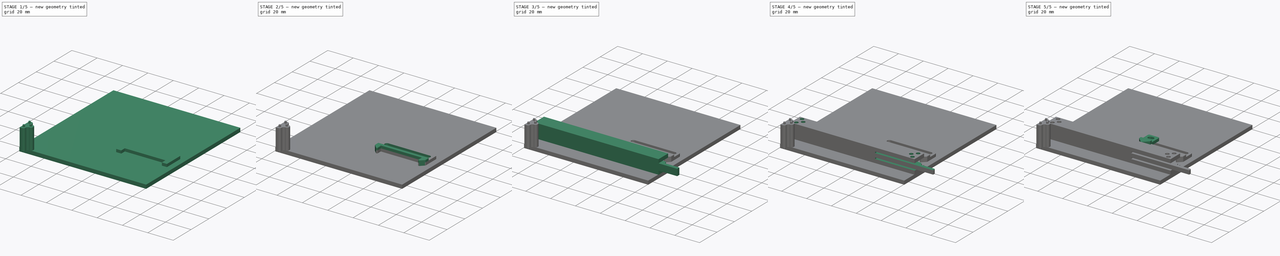
[diagram: build sequence overview — one tinted view per stage of 5, left to right]
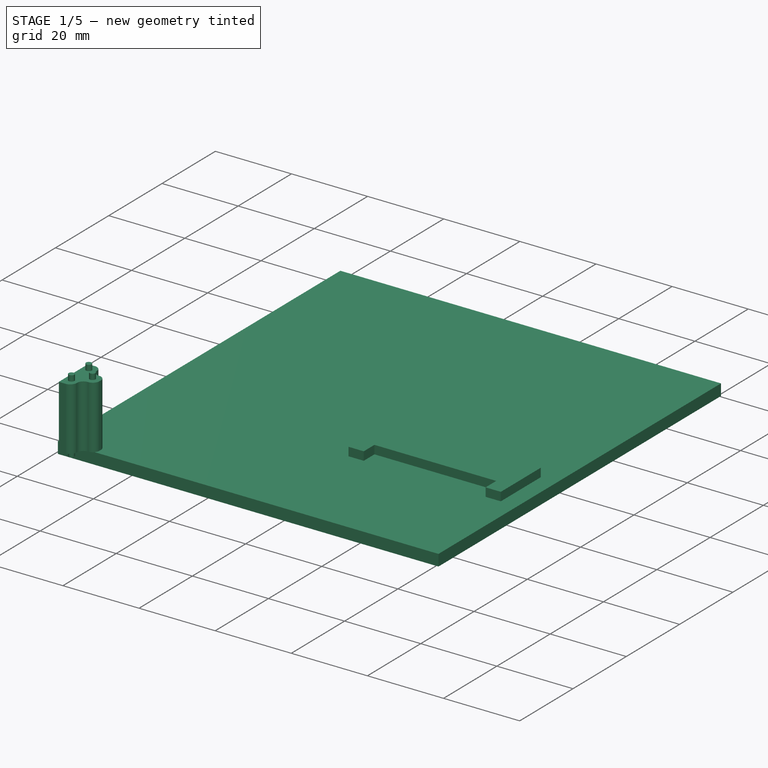
[diagram: stage 1 of 5 — iso view after this stage's code; geometry added in this stage tinted green]
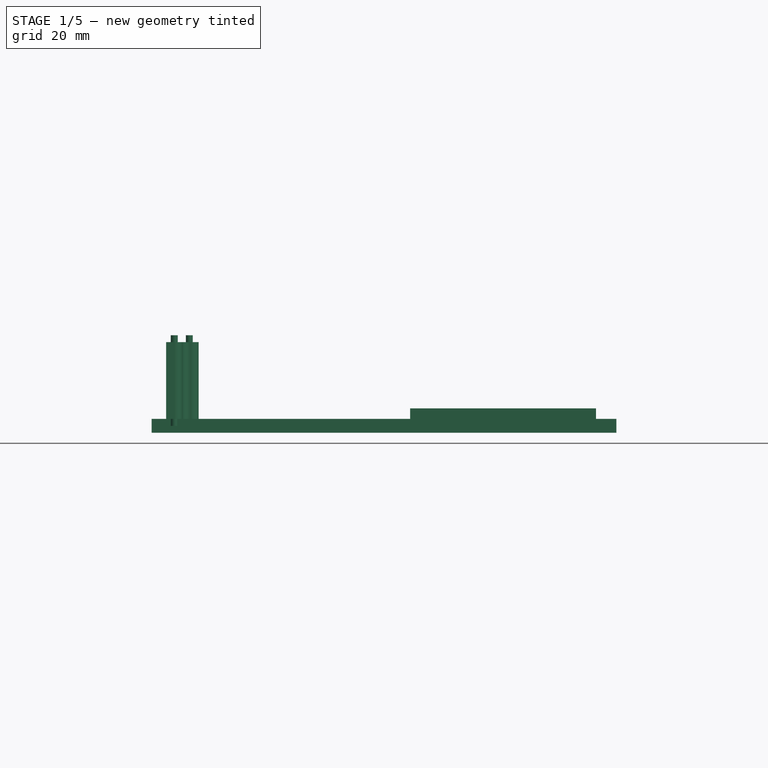
[diagram: stage 1 of 5 — front view after this stage's code; geometry added in this stage tinted green]
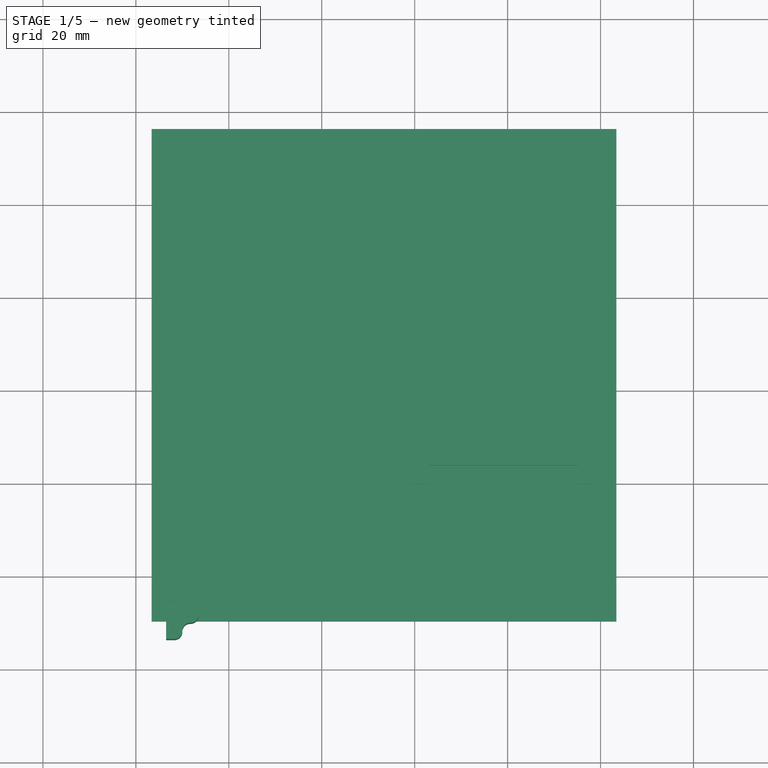
[diagram: stage 1 of 5 — top view after this stage's code; geometry added in this stage tinted green]
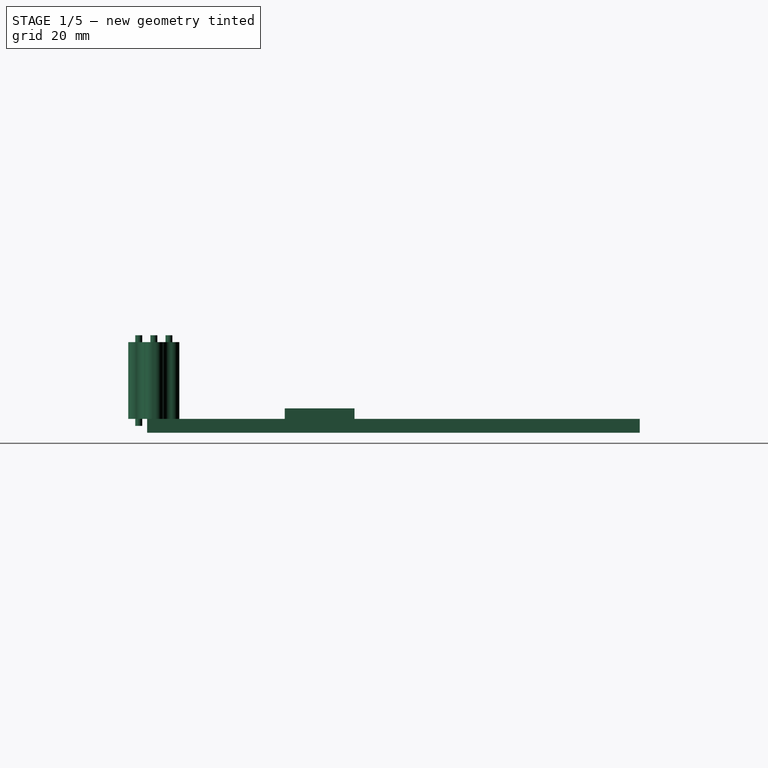
[diagram: stage 1 of 5 — right view after this stage's code; geometry added in this stage tinted green]
FCSTD DOCUMENT  (FreeCAD 0.19R24415 (Git))
Label: FUPCI22
License: All rights reserved
LicenseURL: http://en.wikipedia.org/wiki/All_rights_reserved
objects: Part::Feature×68, App::Part×48, Sketcher::SketchObject×17, PartDesign::Pad×12, PartDesign::Fillet×9, PartDesign::Pocket×5, PartDesign::Body×5, PartDesign::ShapeBinder×2, PartDesign::Chamfer×2, Part::MultiFuse×1, PartDesign::Mirrored×1
note: 150 computed .brp shape members not serialized (recipe doc carries the construction recipe); baked Part::Feature solids carry a one-line shape summary decoded from their .brp

FEATURE [Sketcher::SketchObject] Sketch
  FullyConstrained = false
  MapMode = 5
  Support = -> [XY_Plane]
  sketch-geometry (8):
    g0: LineSegment StartX=-0.972695 StartY=4.5421e-12 StartZ=0 EndX=3.0273 EndY=4.5421e-12 EndZ=0
    g1: LineSegment StartX=39.0273 StartY=0 StartZ=0 EndX=39.0273 EndY=15 EndZ=0
    g2: LineSegment StartX=39.0273 StartY=15 StartZ=0 EndX=-0.972695 EndY=15 EndZ=0
    g3: LineSegment StartX=-0.972695 StartY=15 StartZ=0 EndX=-0.972695 EndY=4.5421e-12 EndZ=0
    g4: LineSegment StartX=3.0273 StartY=4.5421e-12 StartZ=0 EndX=3.0273 EndY=4 EndZ=0
    g5: LineSegment StartX=39.0273 StartY=0 StartZ=0 EndX=35.0273 EndY=0 EndZ=0
    g6: LineSegment StartX=35.0273 StartY=0 StartZ=0 EndX=35.0273 EndY=4 EndZ=0
    g7: LineSegment StartX=3.0273 StartY=4 StartZ=0 EndX=35.0273 EndY=4 EndZ=0
  constraints (23):
    c: Coincident(g1,g2)
    c: Coincident(g2,g3)
    c: Coincident(g3,g0)
    c: Horizontal(g0)
    c: Horizontal(g2)
    c: Vertical(g1)
    c: Vertical(g3)
    c: DistanceY(g1,g1) = 15
    c: DistanceX(g2,g2) = 40
    c: Coincident(g0,g4)
    c: DistanceX(g0,g0) = 4
    c: Vertical(g4)
    c: PointOnObject(g5,g-1)
    c: PointOnObject(g5,g-1)
    c: Coincident(g6,g5)
    c: Vertical(g6)
    c: DistanceY(g4,g4) = 4
    c: Equal(g6,g4)
    c: Equal(g0,g5)
    c: Coincident(g7,g4)
    c: Coincident(g7,g6)
    c: Horizontal(g7)
    c: Coincident(g1,g5)
FEATURE [PartDesign::Pad] Pad
  Direction = (1,1,1)
  Length = 2.25
  Length2 = 100
  Profile = -> Sketch
  Type = 0
FEATURE [Sketcher::SketchObject] Sketch016
  FullyConstrained = false
  MapMode = 5
  Support = -> [XY_Plane051]
  sketch-geometry (8):
    g0: LineSegment StartX=-53.5013 StartY=-22.6828 StartZ=0 EndX=-50.0013 EndY=-22.6828 EndZ=0
    g1: LineSegment StartX=-50.0013 StartY=-22.6828 StartZ=0 EndX=-50.0013 EndY=-26.1828 EndZ=0
    g2: LineSegment StartX=-50.0013 StartY=-26.1828 StartZ=0 EndX=-46.5013 EndY=-26.1828 EndZ=0
    g3: LineSegment StartX=-46.5013 StartY=-26.1828 StartZ=0 EndX=-46.5013 EndY=-30.1828 EndZ=0
    g4: LineSegment StartX=-46.5013 StartY=-30.1828 StartZ=0 EndX=-50.0013 EndY=-30.1828 EndZ=0
    g5: LineSegment StartX=-50.0013 StartY=-30.1828 StartZ=0 EndX=-50.0013 EndY=-33.6828 EndZ=0
    g6: LineSegment StartX=-50.0013 StartY=-33.6828 StartZ=0 EndX=-53.5013 EndY=-33.6828 EndZ=0
    g7: LineSegment StartX=-53.5013 StartY=-22.6828 StartZ=0 EndX=-53.5013 EndY=-33.6828 EndZ=0
  constraints (23):
    c: Horizontal(g0)
    c: Coincident(g1,g0)
    c: Vertical(g1)
    c: Coincident(g2,g1)
    c: Horizontal(g2)
    c: Vertical(g3)
    c: Coincident(g4,g3)
    c: Horizontal(g4)
    c: Coincident(g5,g4)
    c: Vertical(g5)
    c: Horizontal(g6)
    c: Coincident(g7,g0)
    c: Coincident(g7,g6)
    c: Vertical(g7)
    c: DistanceY(g3,g3) = 4
    c: Coincident(g2,g3)
    c: DistanceX(g2,g2) = 3.5
    c: Equal(g2,g4)
    c: DistanceY(g1,g1) = 3.5
    c: Equal(g1,g5)
    c: Equal(g2,g0)
    c: Coincident(g5,g6)
    c: DistanceX(g6,g6) = 3.5
FEATURE [PartDesign::Pad] Pad010
  Direction = (1,1,1)
  Length = 16.5
  Length2 = 100
  Profile = -> Sketch016
  Type = 0
FEATURE [PartDesign::Body] Body  label="placa_trava"
  Group = -> [Sketch,Pad,Sketch002,Pocket,Sketch012,Pad009,Fillet003,Chamfer001,Fillet004,Fillet008,Fillet009]
  Origin = -> Origin
  Placement = pos=(30,-12.6,3) rot=(0,0,1;0rad)
  Tip = -> Fillet009
FEATURE [PartDesign::Pad] Pad012
  BaseFeature = -> Pad010
  Direction = (1,1,1)
  Length = 1.5
  Length2 = 100
  Profile = -> Sketch017
  Type = 0
FEATURE [Sketcher::SketchObject] Sketch019
  ExternalGeometry = -> [Pad012]
  FullyConstrained = false
  MapMode = 5
  Placement = pos=(0,0,0) rot=(1,0,0;3.14159rad)
  sketch-geometry (5):
    g0: Circle CenterX=-51.7513 CenterY=31.4328 CenterZ=0 NormalX=0 NormalY=0 NormalZ=1 AngleXU=0 Radius=0.75
    g1: Circle CenterX=-51.7513 CenterY=24.9328 CenterZ=0 NormalX=0 NormalY=0 NormalZ=1 AngleXU=0 Radius=0.75
    g2: GeomPoint X=-50.0013 Y=28.1828 Z=0
    g3: GeomPoint X=-51.7513 Y=33.6828 Z=0
    g4: Circle CenterX=-48.2362 CenterY=28.1828 CenterZ=0 NormalX=0 NormalY=0 NormalZ=1 AngleXU=0 Radius=0.75
  constraints (9):
    c: DistanceY(g2,g0) = 3.25
    c: DistanceX(g0,g3) = 0
    c: DistanceX(g1,g0) = 0
    c: Diameter(g0) = 1.5
    c: Diameter(g1) = 1.5
    c: DistanceY(g1,g2) = 3.25
    c: DistanceY(g2,g4) = 0
    c: Diameter(g4) = 1.5
    c: Symmetric(g-4,g-3,g2)
FEATURE [PartDesign::Pad] Pad013
  BaseFeature = -> Pad012
  Direction = (1,1,1)
  Length = 1.5
  Length2 = 100
  Profile = -> Sketch019
  Type = 0
FEATURE [PartDesign::Fillet] Fillet010
  Base = -> Pad013 [Edge29,Edge27,Edge30,Edge28,Edge2,Edge8]
  BaseFeature = -> Pad013
  Radius = 1.72
  SupportTransform = false
FEATURE [PartDesign::Body] Body003  label="separador"
  Group = -> [Sketch016,Pad010,Sketch017,Pad012,Sketch019,Pad013,Fillet010]
  Origin = -> Origin051
  Placement = pos=(-1.4,15.2,11.1) rot=(0,0,1;0rad)
  Tip = -> Fillet010
FEATURE [Sketcher::SketchObject] Sketch020
  FullyConstrained = false
  MapMode = 5
  Support = -> [XY_Plane052]
  sketch-geometry (4):
    g0: LineSegment StartX=43.3955 StartY=-29.6246 StartZ=0 EndX=-56.6045 EndY=-29.6246 EndZ=0
    g1: LineSegment StartX=-56.6045 StartY=-29.6246 StartZ=0 EndX=-56.6045 EndY=76.3754 EndZ=0
    g2: LineSegment StartX=-56.6045 StartY=76.3754 StartZ=0 EndX=43.3955 EndY=76.3754 EndZ=0
    g3: LineSegment StartX=43.3955 StartY=76.3754 StartZ=0 EndX=43.3955 EndY=-29.6246 EndZ=0
  constraints (10):
    c: Coincident(g0,g1)
    c: Coincident(g1,g2)
    c: Coincident(g2,g3)
    c: Coincident(g3,g0)
    c: Horizontal(g0)
    c: Horizontal(g2)
    c: Vertical(g1)
    c: Vertical(g3)
    c: DistanceX(g0,g0) = 100
    c: DistanceY(g1,g1) = 106
FEATURE [PartDesign::Pad] Pad014
  Direction = (1,1,1)
  Length = 3
  Length2 = 100
  Profile = -> Sketch020
  Reversed = true
  Type = 0
FEATURE [PartDesign::Body] Body004  label="base"
  Group = -> [Sketch020,Pad014]
  Origin = -> Origin052
  Tip = -> Pad014
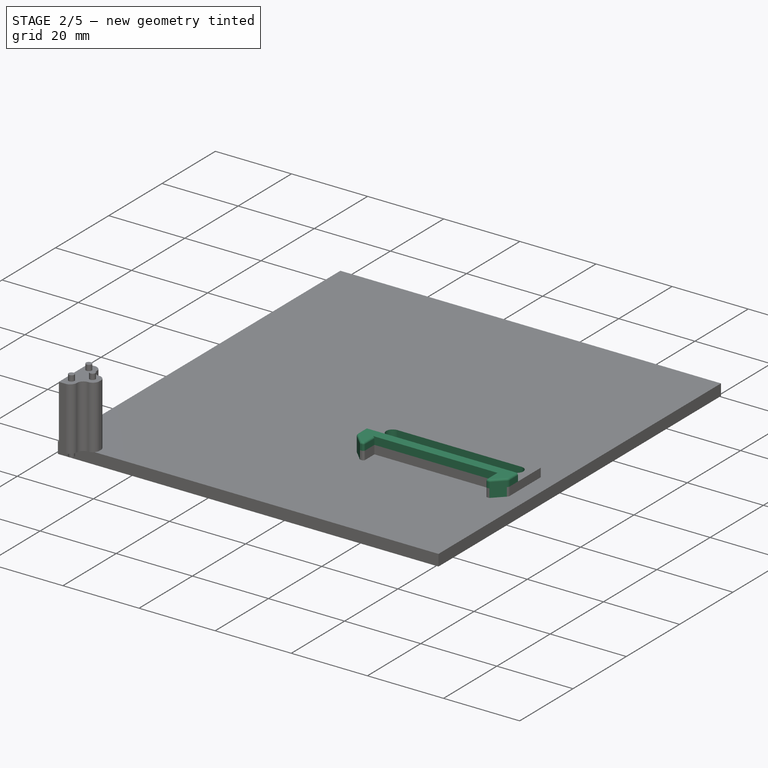
[diagram: stage 2 of 5 — iso view after this stage's code; geometry added in this stage tinted green]
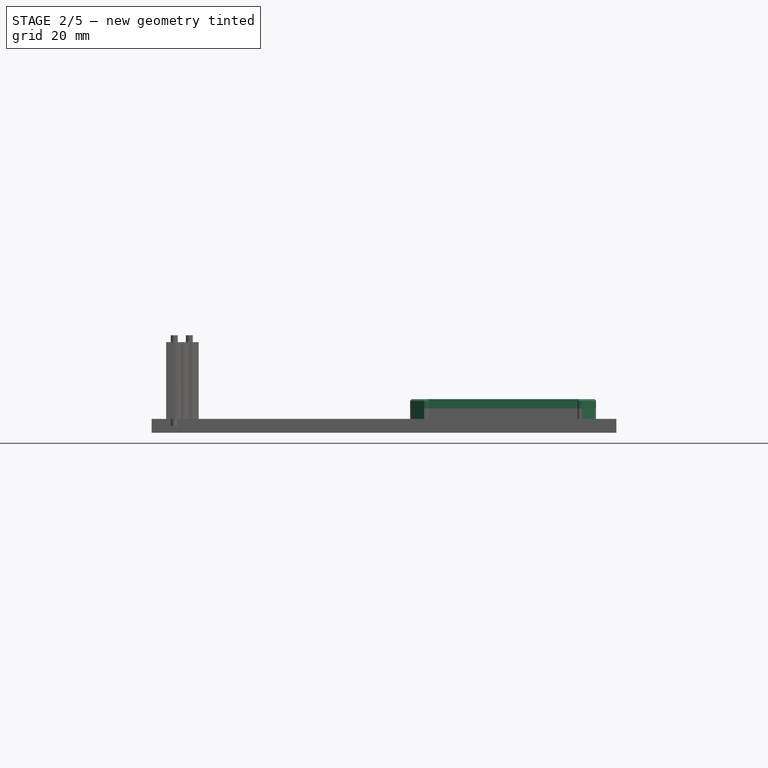
[diagram: stage 2 of 5 — front view after this stage's code; geometry added in this stage tinted green]
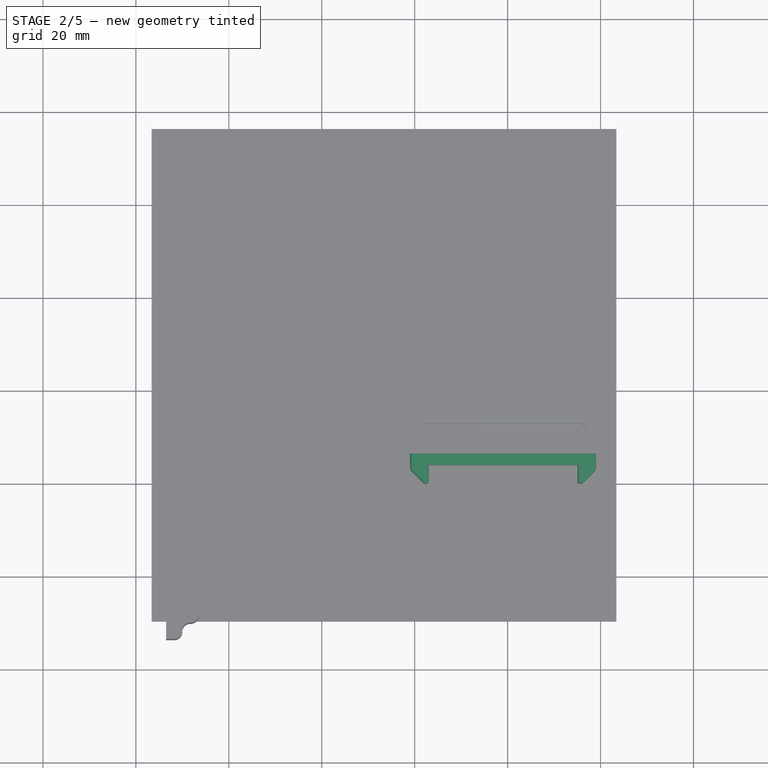
[diagram: stage 2 of 5 — top view after this stage's code; geometry added in this stage tinted green]
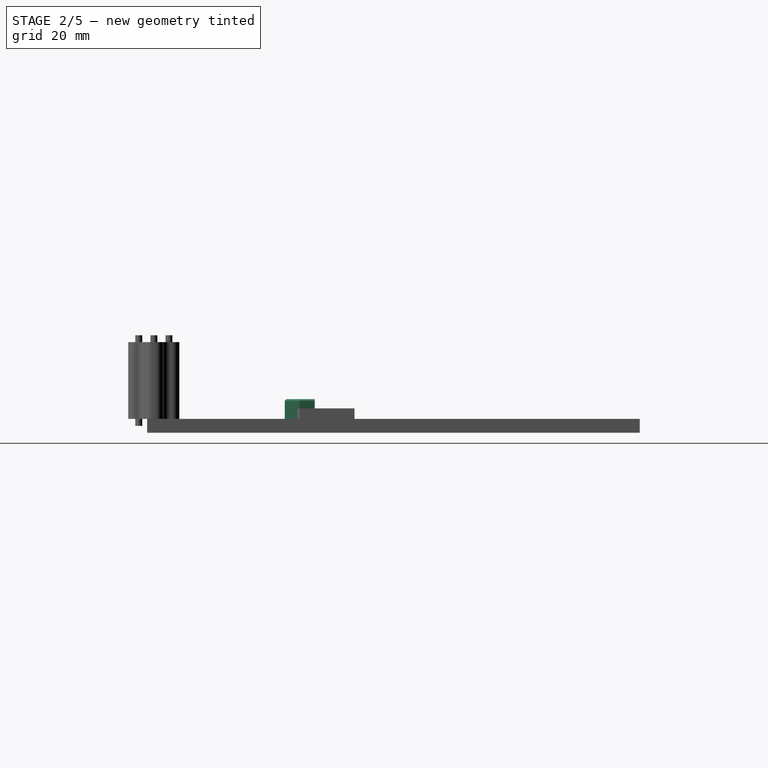
[diagram: stage 2 of 5 — right view after this stage's code; geometry added in this stage tinted green]
FEATURE [Sketcher::SketchObject] Sketch002
  ExternalGeometry = -> [Pad]
  FullyConstrained = false
  MapMode = 5
  Placement = pos=(0,0,2.25) rot=(0,0,1;0rad)
  sketch-geometry (6):
    g0: ArcOfCircle CenterX=2.74454 CenterY=11.2828 CenterZ=0 NormalX=0 NormalY=0 NormalZ=1 AngleXU=0 Radius=1.71724 StartAngle=1.5708 EndAngle=4.71239
    g1: LineSegment StartX=2.74454 StartY=13 StartZ=0 EndX=35.3101 EndY=13 EndZ=0
    g2: LineSegment StartX=2.74454 StartY=9.56553 StartZ=0 EndX=35.3101 EndY=9.56553 EndZ=0
    g3: ArcOfCircle CenterX=35.3101 CenterY=11.2828 CenterZ=0 NormalX=0 NormalY=0 NormalZ=1 AngleXU=0 Radius=1.71724 StartAngle=4.71239 EndAngle=7.85398
    g4: GeomPoint X=37.0273 Y=11.2828 Z=0
    g5: GeomPoint X=1.0273 Y=11.2828 Z=0
  constraints (17):
    c: Vertical(g0,g0)
    c: Vertical(g0,g0)
    c: Coincident(g1,g0)
    c: Horizontal(g1)
    c: Coincident(g2,g0)
    c: Horizontal(g2)
    c: Coincident(g3,g1)
    c: Coincident(g3,g2)
    c: Vertical(g1,g3)
    c: Vertical(g3,g2)
    c: PointOnObject(g4,g3)
    c: Horizontal(g4,g3)
    c: PointOnObject(g5,g0)
    c: Horizontal(g5,g0)
    c: DistanceX(g4,g-4) = 2
    c: DistanceX(g-3,g5) = 2
    c: DistanceY(g1,g-4) = 2
FEATURE [PartDesign::Pocket] Pocket
  BaseFeature = -> Pad
  Length = 5
  Length2 = 100
  Profile = -> Sketch002
  Type = 0
FEATURE [PartDesign::Body] Body001  label="placa_semtrava"
  Group = -> [CopyPad003,Fusion,Sketch005,Pad004,Sketch006,Pad005,Chamfer,Sketch013,Pocket003,Fillet]
  Origin = -> Origin001
  Placement = pos=(-57,-14,0) rot=(0,0,1;0rad)
  Tip = -> Fillet
FEATURE [PartDesign::Pad] Pad009
  BaseFeature = -> Pocket
  Direction = (1,1,1)
  Length = 2
  Length2 = 100
  Profile = -> Sketch012
  Type = 0
FEATURE [PartDesign::Fillet] Fillet003
  Base = -> Pad009 [Edge38,Edge55,Edge6,Edge32]
  BaseFeature = -> Pad009
  Radius = 0.5
  SupportTransform = false
FEATURE [PartDesign::Chamfer] Chamfer001
  Angle = 45
  Base = -> Fillet003 [Edge32,Edge62,Edge3,Edge24]
  BaseFeature = -> Fillet003
  ChamferType = 0
  FlipDirection = false
  Size = 3
  Size2 = 1
  SupportTransform = false
FEATURE [PartDesign::Fillet] Fillet004
  Base = -> Chamfer001 [Edge54,Edge20,Edge71,Edge36]
  BaseFeature = -> Chamfer001
  Radius = 1
  SupportTransform = false
FEATURE [PartDesign::Body] Body002  label="casco"
  Group = -> [Sketch008,Pad006,Sketch009,Pad007,Sketch010,Pad008,Sketch011,Pocket002,Fillet005,Fillet006,Sketch014,Pocket004,Fillet007,Sketch015,Pocket005,Mirrored,ReferencePlane,Sketch018,Pad011]
  Origin = -> Origin002
  Tip = -> Pad011
FEATURE [PartDesign::Fillet] Fillet008
  Base = -> Fillet004 [Edge81,Edge84,Edge83,Edge79,Edge77,Edge73,Edge70,Edge68,Edge63,Edge59,Edge61,Edge65]
  BaseFeature = -> Fillet004
  Radius = 0.5
  SupportTransform = false
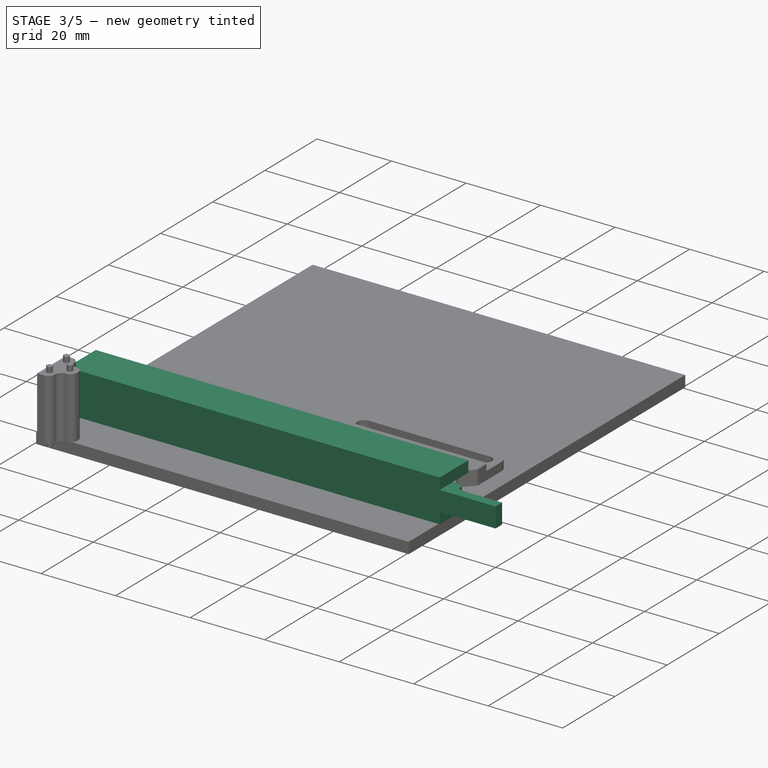
[diagram: stage 3 of 5 — iso view after this stage's code; geometry added in this stage tinted green]
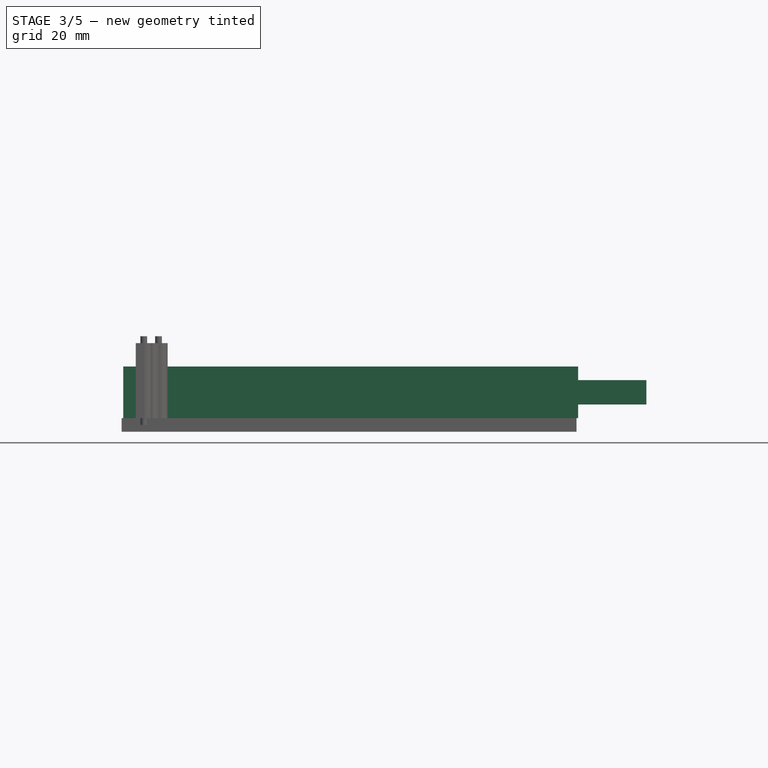
[diagram: stage 3 of 5 — front view after this stage's code; geometry added in this stage tinted green]
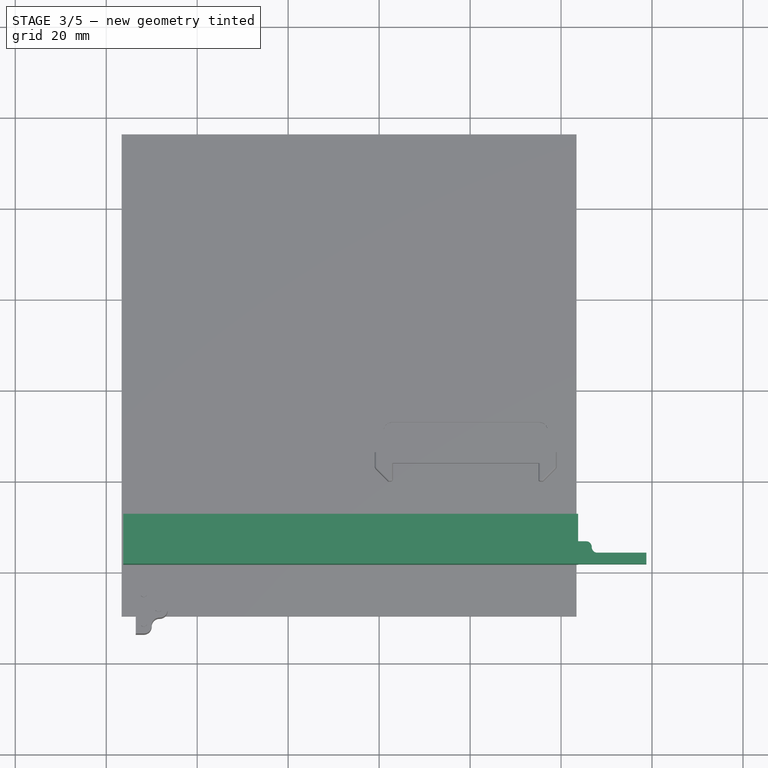
[diagram: stage 3 of 5 — top view after this stage's code; geometry added in this stage tinted green]
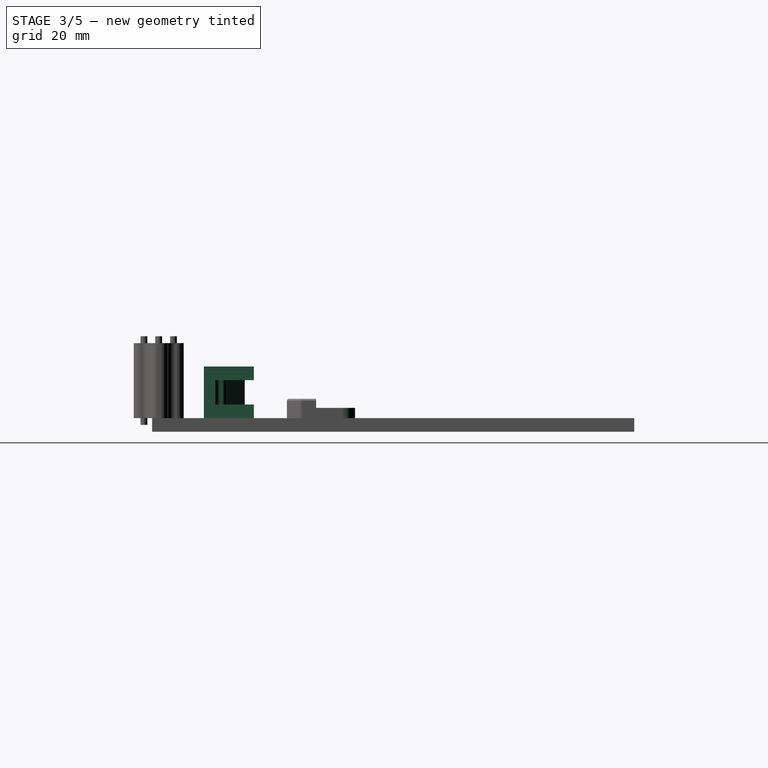
[diagram: stage 3 of 5 — right view after this stage's code; geometry added in this stage tinted green]
FEATURE [Sketcher::SketchObject] Sketch008
  FullyConstrained = false
  MapMode = 5
  Support = -> [XY_Plane002]
  sketch-geometry (4):
    g0: LineSegment StartX=-56.2507 StartY=-7.25865 StartZ=0 EndX=43.7493 EndY=-7.25865 EndZ=0
    g1: LineSegment StartX=43.7493 StartY=-7.25865 StartZ=0 EndX=43.7493 EndY=-18.2587 EndZ=0
    g2: LineSegment StartX=43.7493 StartY=-18.2587 StartZ=0 EndX=-56.2507 EndY=-18.2587 EndZ=0
    g3: LineSegment StartX=-56.2507 StartY=-18.2587 StartZ=0 EndX=-56.2507 EndY=-7.25865 EndZ=0
  constraints (10):
    c: Coincident(g0,g1)
    c: Coincident(g1,g2)
    c: Coincident(g2,g3)
    c: Coincident(g3,g0)
    c: Horizontal(g0)
    c: Horizontal(g2)
    c: Vertical(g1)
    c: Vertical(g3)
    c: DistanceX(g2,g2) = 100
    c: DistanceY(g3,g3) = 11
FEATURE [PartDesign::Pad] Pad006
  Direction = (1,1,1)
  Length = 3
  Length2 = 100
  Profile = -> Sketch008
  Type = 0
FEATURE [Sketcher::SketchObject] Sketch009
  ExternalGeometry = -> [Pad006]
  FullyConstrained = false
  MapMode = 5
  Placement = pos=(0,0,3) rot=(0,0,1;0rad)
  Support = -> [Pad006]
  sketch-geometry (9):
    g0: LineSegment StartX=-56.2507 StartY=-13.2587 StartZ=0 EndX=33.9929 EndY=-13.2587 EndZ=0
    g1: LineSegment StartX=-56.2507 StartY=-18.2587 StartZ=0 EndX=-56.2507 EndY=-13.2587 EndZ=0
    g2: LineSegment StartX=33.9929 StartY=-13.2587 StartZ=0 EndX=33.9929 EndY=-9.25865 EndZ=0
    g3: LineSegment StartX=33.9929 StartY=-9.25865 StartZ=0 EndX=43.4929 EndY=-13.2587 EndZ=0
    g4: LineSegment StartX=43.4929 StartY=-13.2587 StartZ=0 EndX=46.7493 EndY=-13.2587 EndZ=0
    g5: LineSegment StartX=-56.2507 StartY=-18.2587 StartZ=0 EndX=58.7493 EndY=-18.2587 EndZ=0
    g6: LineSegment StartX=46.7493 StartY=-13.2587 StartZ=0 EndX=46.7493 EndY=-15.7587 EndZ=0
    g7: LineSegment StartX=46.7493 StartY=-15.7587 StartZ=0 EndX=58.7493 EndY=-15.7587 EndZ=0
    g8: LineSegment StartX=58.7493 StartY=-18.2587 StartZ=0 EndX=58.7493 EndY=-15.7587 EndZ=0
  constraints (25):
    c: Coincident(g1,g0)
    c: Horizontal(g0)
    c: Vertical(g1)
    c: DistanceY(g1,g1) = 5
    c: Coincident(g0,g2)
    c: Vertical(g2)
    c: Coincident(g2,g3)
    c: Coincident(g3,g4)
    c: Horizontal(g4)
    c: DistanceY(g3,g0) = 0
    c: DistanceX(g0,g3) = 9.5
    c: DistanceY(g0,g2) = 4
    c: Coincident(g5,g1)
    c: Horizontal(g5)
    c: Coincident(g1,g-4)
    c: DistanceX(g-5,g5) = 15
    c: Coincident(g6,g4)
    c: Vertical(g6)
    c: Coincident(g7,g6)
    c: Horizontal(g7)
    c: Coincident(g8,g5)
    c: Vertical(g8)
    c: DistanceX(g7,g7) = 12
    c: DistanceY(g5,g7) = 2.5
    c: Coincident(g7,g8)
FEATURE [PartDesign::Pad] Pad007
  BaseFeature = -> Pad006
  Direction = (1,1,1)
  Length = 5.35
  Length2 = 100
  Profile = -> Sketch009
  Type = 0
FEATURE [Sketcher::SketchObject] Sketch010
  ExternalGeometry = -> [Pad007]
  FullyConstrained = true
  MapMode = 5
  Placement = pos=(0,0,8.35) rot=(0,0,1;0rad)
  Support = -> [Pad007]
  sketch-geometry (4):
    g0: LineSegment StartX=-56.2507 StartY=-7.25865 StartZ=0 EndX=43.7493 EndY=-7.25865 EndZ=0
    g1: LineSegment StartX=43.7493 StartY=-7.25865 StartZ=0 EndX=43.7493 EndY=-18.2587 EndZ=0
    g2: LineSegment StartX=43.7493 StartY=-18.2587 StartZ=0 EndX=-56.2507 EndY=-18.2587 EndZ=0
    g3: LineSegment StartX=-56.2507 StartY=-18.2587 StartZ=0 EndX=-56.2507 EndY=-7.25865 EndZ=0
  constraints (10):
    c: Coincident(g0,g1)
    c: Coincident(g1,g2)
    c: Coincident(g2,g3)
    c: Coincident(g3,g0)
    c: Horizontal(g2)
    c: Vertical(g1)
    c: Vertical(g3)
    c: Coincident(g0,g-5)
    c: PointOnObject(g1,g-4)
    c: Coincident(g0,g-5)
FEATURE [PartDesign::Pad] Pad008
  BaseFeature = -> Pad007
  Direction = (1,1,1)
  Length = 3
  Length2 = 100
  Profile = -> Sketch010
  Type = 0
FEATURE [Sketcher::SketchObject] Sketch011
  ExternalGeometry = -> [Pad007]
  FullyConstrained = false
  MapMode = 5
  Placement = pos=(0,0,8.35) rot=(0,0,1;0rad)
  Support = -> [Pad007]
  sketch-geometry (4):
    g0: LineSegment StartX=13.9929 StartY=-13.2587 StartZ=0 EndX=12.9929 EndY=-14.5087 EndZ=0
    g1: LineSegment StartX=11.9929 StartY=-13.2587 StartZ=0 EndX=12.9929 EndY=-14.5087 EndZ=0
    g2: LineSegment StartX=11.9929 StartY=-13.2587 StartZ=0 EndX=13.9929 EndY=-13.2587 EndZ=0
    g3: GeomPoint X=15.0812 Y=-18.2587 Z=0
  constraints (12):
    c: PointOnObject(g0,g-5)
    c: PointOnObject(g1,g-5)
    c: Coincident(g1,g0)
    c: Equal(g1,g0)
    c: DistanceX(g1,g0) = 2
    c: Coincident(g2,g1)
    c: Coincident(g2,g0)
    c: PointOnObject(g0,g-6)
    c: PointOnObject(g1,g-6)
    c: PointOnObject(g3,g-7)
    c: DistanceY(g3,g0) = 3.75
    c: DistanceX(g0,g-6) = 20
FEATURE [PartDesign::Pocket] Pocket002
  BaseFeature = -> Pad008
  Length = 0
  Length2 = 100
  Profile = -> Sketch011
  Type = 3
  UpToFace = -> Pad008 [Face5]
FEATURE [PartDesign::Fillet] Fillet005
  Base = -> Pocket002 [Edge40,Edge52]
  BaseFeature = -> Pocket002
  Radius = 1.23
  SupportTransform = false
FEATURE [PartDesign::Fillet] Fillet009
  Base = -> Fillet008 [Edge82,Edge58]
  BaseFeature = -> Fillet008
  Radius = 3
  SupportTransform = false
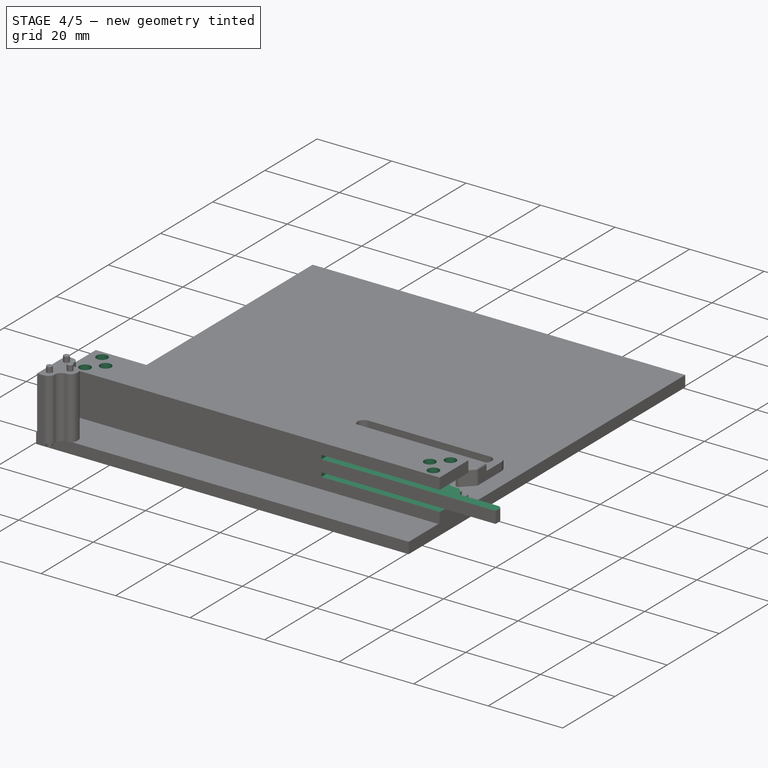
[diagram: stage 4 of 5 — iso view after this stage's code; geometry added in this stage tinted green]
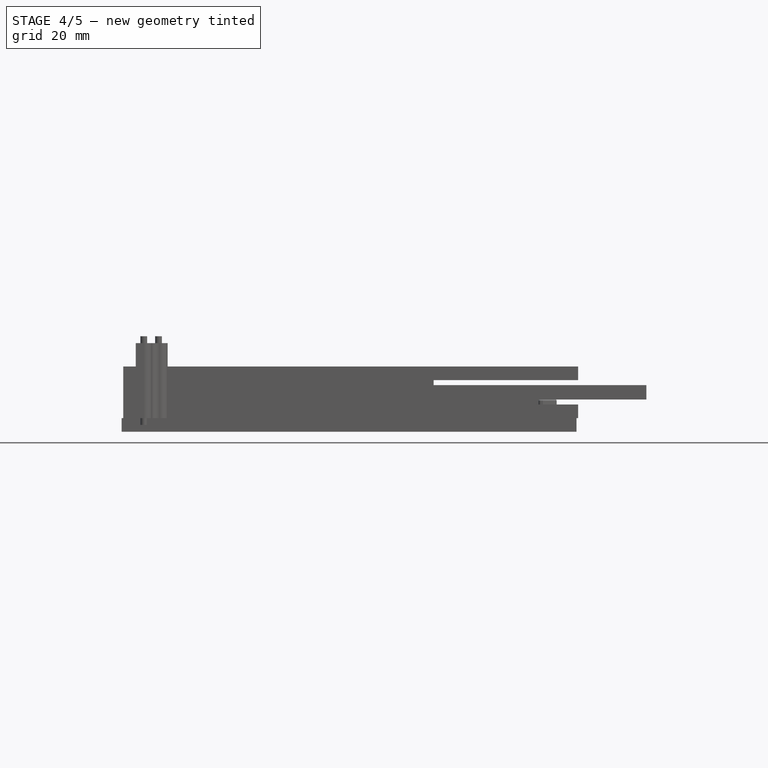
[diagram: stage 4 of 5 — front view after this stage's code; geometry added in this stage tinted green]
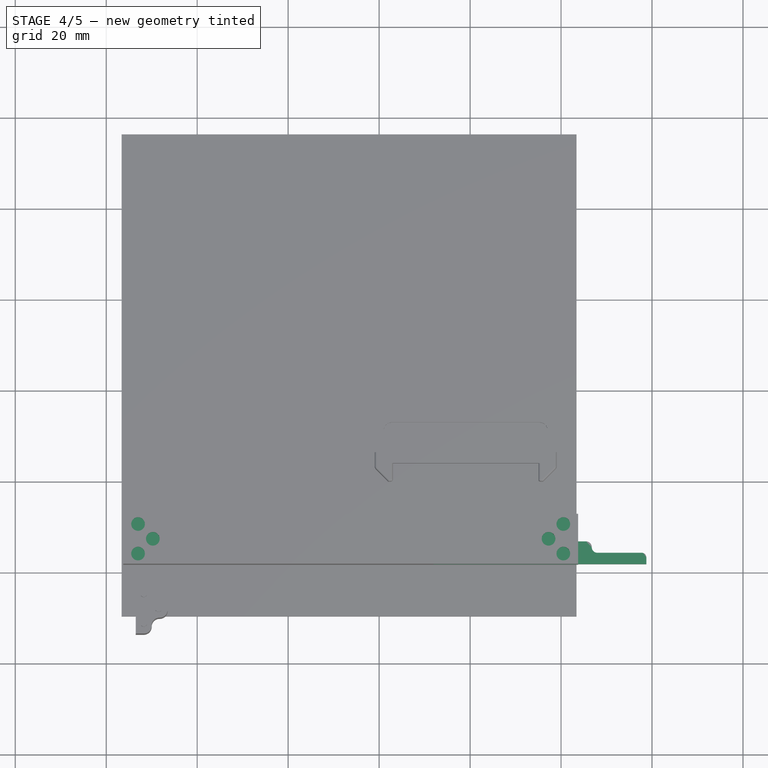
[diagram: stage 4 of 5 — top view after this stage's code; geometry added in this stage tinted green]
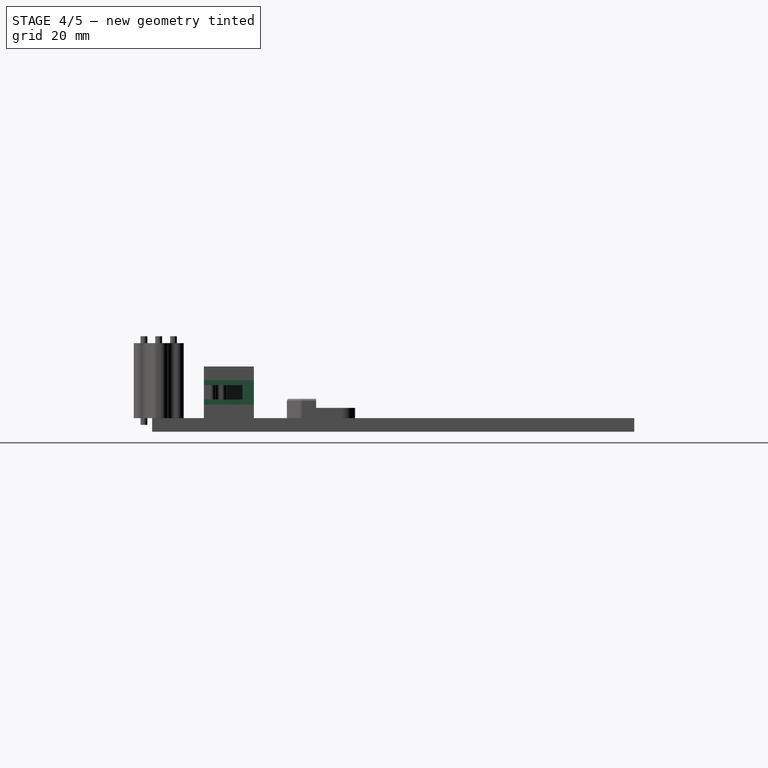
[diagram: stage 4 of 5 — right view after this stage's code; geometry added in this stage tinted green]
FEATURE [PartDesign::Fillet] Fillet006
  Base = -> Fillet005 [Edge10]
  BaseFeature = -> Fillet005
  Radius = 1
  SupportTransform = false
FEATURE [Sketcher::SketchObject] Sketch014
  ExternalGeometry = -> [Fillet006]
  FullyConstrained = true
  MapMode = 5
  Placement = pos=(0,-18.2587,0) rot=(1,0,0;1.5708rad)
  Support = -> [Fillet006]
  sketch-geometry (8):
    g0: LineSegment StartX=11.9929 StartY=8.35 StartZ=0 EndX=58.7493 EndY=8.35 EndZ=0
    g1: LineSegment StartX=58.7493 StartY=8.35 StartZ=0 EndX=58.7493 EndY=7.25 EndZ=0
    g2: LineSegment StartX=58.7493 StartY=7.25 StartZ=0 EndX=11.9929 EndY=7.25 EndZ=0
    g3: LineSegment StartX=11.9929 StartY=7.25 StartZ=0 EndX=11.9929 EndY=8.35 EndZ=0
    g4: LineSegment StartX=11.9929 StartY=3 StartZ=0 EndX=58.7493 EndY=3 EndZ=0
    g5: LineSegment StartX=58.7493 StartY=3 StartZ=0 EndX=58.7493 EndY=4.1 EndZ=0
    g6: LineSegment StartX=58.7493 StartY=4.1 StartZ=0 EndX=11.9929 EndY=4.1 EndZ=0
    g7: LineSegment StartX=11.9929 StartY=4.1 StartZ=0 EndX=11.9929 EndY=3 EndZ=0
  constraints (23):
    c: Coincident(g0,g1)
    c: Coincident(g1,g2)
    c: Coincident(g2,g3)
    c: Coincident(g3,g0)
    c: Horizontal(g0)
    c: Horizontal(g2)
    c: Vertical(g1)
    c: Vertical(g3)
    c: PointOnObject(g1,g-3)
    c: Coincident(g4,g5)
    c: Coincident(g5,g6)
    c: Coincident(g6,g7)
    c: Coincident(g7,g4)
    c: Horizontal(g4)
    c: Horizontal(g6)
    c: Vertical(g5)
    c: Vertical(g7)
    c: PointOnObject(g4,g-5)
    c: PointOnObject(g5,g-3)
    c: DistanceY(g3,g3) = 1.1
    c: Equal(g3,g7)
    c: DistanceX(g6,g2) = 0
    c: Coincident(g0,g-6)
FEATURE [PartDesign::Pocket] Pocket004
  BaseFeature = -> Fillet006
  Length = 12
  Length2 = 100
  Profile = -> Sketch014
  Type = 0
FEATURE [PartDesign::Fillet] Fillet007
  Base = -> Pocket004 [Edge80]
  BaseFeature = -> Pocket004
  Radius = 1
  SupportTransform = false
FEATURE [Sketcher::SketchObject] Sketch015
  ExternalGeometry = -> [Fillet007]
  FullyConstrained = false
  MapMode = 5
  Placement = pos=(0,0,11.35) rot=(0,0,1;0rad)
  Support = -> [Fillet007]
  expr: Constraints[1] = .Constraints.centro
  expr: Constraints[2] = .Constraints.centro
  expr: Constraints[5] = .Constraints.centro
  expr: Constraints[10] = .Constraints.diametro
  expr: Constraints[3] = .Constraints.centro
  expr: Constraints[11] = .Constraints.diametro
  sketch-geometry (10):
    g0: GeomPoint X=-53.0007 Y=-16.0087 Z=0
    g1: GeomPoint X=-49.7507 Y=-12.7587 Z=0
    g2: GeomPoint X=-53.0007 Y=-9.50865 Z=0
    g3: Circle CenterX=-53.0007 CenterY=-9.50865 CenterZ=0 NormalX=0 NormalY=0 NormalZ=1 AngleXU=0 Radius=1.5
    g4: Circle CenterX=-49.7507 CenterY=-12.7587 CenterZ=0 NormalX=0 NormalY=0 NormalZ=1 AngleXU=0 Radius=1.5
    g5: Circle CenterX=-53.0007 CenterY=-16.0087 CenterZ=0 NormalX=0 NormalY=0 NormalZ=1 AngleXU=0 Radius=1.5
    g6: LineSegment StartX=-6.2507 StartY=-7.25865 StartZ=0 EndX=-6.2507 EndY=-18.2587 EndZ=0
    g7: Circle CenterX=40.4993 CenterY=-9.50865 CenterZ=0 NormalX=0 NormalY=0 NormalZ=1 AngleXU=0 Radius=1.5
    g8: Circle CenterX=37.2493 CenterY=-12.7587 CenterZ=0 NormalX=0 NormalY=0 NormalZ=1 AngleXU=0 Radius=1.5
    g9: Circle CenterX=40.4993 CenterY=-16.0087 CenterZ=0 NormalX=0 NormalY=0 NormalZ=1 AngleXU=0 Radius=1.5
  constraints (17):
    c: DistanceY(g1,g2) = 3.25  'centro'
    c: DistanceY(g0,g1) = 3.25
    c: DistanceX(g0,g1) = 3.25
    c: DistanceX(g2,g1) = 3.25
    c: DistanceY(g-4,g1) = 5.5  'centro2'
    c: DistanceX(g-4,g0) = 3.25
    c: Coincident(g3,g2)
    c: Coincident(g4,g1)
    c: Coincident(g5,g0)
    c: Diameter(g5) = 3  'diametro'
    c: Diameter(g4) = 3
    c: Diameter(g3) = 3
    c: Symmetric(g-3,g-3,g6)
    c: Symmetric(g-4,g-4,g6)
    c: Diameter(g9) = 3  'diametro'
    c: Diameter(g8) = 3
    c: Diameter(g7) = 3
FEATURE [PartDesign::Pocket] Pocket005
  BaseFeature = -> Fillet007
  Length = 2
  Length2 = 100
  Profile = -> Sketch015
  Type = 0
FEATURE [Part::Feature] Part__Feature  label="SOLID"
  shape: bbox 10.9 x 4.65 x 16 mm, 26 faces (baked)
FEATURE [App::Part] Crystal_HC49_U_Vertical  label="Crystal_HC49-U_Vertical"
  Group = -> [Part__Feature]
  Origin = -> Origin003
  Placement = pos=(84.4804,-56.5912,1.65) rot=(0,0,1;3.14159rad)
FEATURE [Part::Feature] Part__Feature001  label="SOLID001"
  shape: bbox 2.54 x 10.16 x 11.54 mm, 100 faces (baked)
FEATURE [App::Part] PinHeader_1x04_P2_54mm_Vertical  label="PinHeader_1x04_P2.54mm_Vertical"
  Group = -> [Part__Feature001]
  Origin = -> Origin004
  Placement = pos=(42.5704,-61.2902,1.65) rot=(0,0,-1;1.5708rad)
FEATURE [Part::Feature] Part__Feature002  label="SOLID002"
  shape: bbox 10.9 x 4.65 x 16 mm, 26 faces (baked)
FEATURE [App::Part] Crystal_HC49_U_Vertical001  label="Crystal_HC49-U_Vertical001"
  Group = -> [Part__Feature002]
  Origin = -> Origin005
  Placement = pos=(60.3504,-55.3212,1.65) rot=(0,0,1;3.14159rad)
FEATURE [Part::Feature] Part__Feature003  label="SOLID003"
  shape: bbox 15.48 x 20.8 x 16.45 mm, 165 faces (baked)
FEATURE [Part::Feature] Part__Feature004  label="SOLID004"
  shape: bbox 12.38 x 18.5 x 12.2 mm, 161 faces (baked)
FEATURE [Part::Feature] Part__Feature005  label="SOLID005"
  shape: bbox 15.88 x 21.2 x 17.34 mm, 238 faces (baked)
FEATURE [Part::Feature] Part__Feature006  label="SOLID006"
  shape: bbox 1.295 x 17.47 x 15.95 mm, 14 faces (baked)
FEATURE [Part::Feature] Part__Feature007  label="SOLID007"
  shape: bbox 1.555 x 14.93 x 15.95 mm, 14 faces (baked)
FEATURE [Part::Feature] Part__Feature008  label="SOLID008"
  shape: bbox 0.9 x 14.93 x 16.05 mm, 14 faces (baked)
FEATURE [Part::Feature] Part__Feature009  label="SOLID009"
  shape: bbox 1.055 x 14.93 x 16.05 mm, 14 faces (baked)
FEATURE [Part::Feature] Part__Feature010  label="SOLID010"
  shape: bbox 0.9003 x 17.45 x 16.05 mm, 13 faces (baked)
FEATURE [Part::Feature] Part__Feature011  label="SOLID011"
  shape: bbox 1.055 x 17.47 x 16.05 mm, 14 faces (baked)
FEATURE [Part::Feature] Part__Feature012  label="SOLID012"
  shape: bbox 1.555 x 17.47 x 16.05 mm, 14 faces (baked)
FEATURE [Part::Feature] Part__Feature013  label="SOLID013"
  shape: bbox 1.295 x 14.93 x 16.05 mm, 14 faces (baked)
FEATURE [App::Part] rj45
  Group = -> [Part__Feature003,Part__Feature004,Part__Feature005,Part__Feature006,Part__Feature007,Part__Feature008,Part__Feature009,Part__Feature010,Part__Feature011,Part__Feature012,Part__Feature013]
  Origin = -> Origin006
  Placement = pos=(124.024,-51.4012,8.127) rot=(0,0,1;1.5708rad)
FEATURE [Part::Feature] Part__Feature014  label="SOLID014"
  shape: bbox 15.48 x 20.8 x 16.45 mm, 165 faces (baked)
FEATURE [Part::Feature] Part__Feature015  label="SOLID015"
  shape: bbox 12.38 x 18.5 x 12.2 mm, 161 faces (baked)
FEATURE [Part::Feature] Part__Feature016  label="SOLID016"
  shape: bbox 15.88 x 21.2 x 17.34 mm, 238 faces (baked)
FEATURE [Part::Feature] Part__Feature017  label="SOLID017"
  shape: bbox 1.295 x 17.47 x 15.95 mm, 14 faces (baked)
FEATURE [Part::Feature] Part__Feature018  label="SOLID018"
  shape: bbox 1.555 x 14.93 x 15.95 mm, 14 faces (baked)
FEATURE [Part::Feature] Part__Feature019  label="SOLID019"
  shape: bbox 0.9 x 14.93 x 16.05 mm, 14 faces (baked)
FEATURE [Part::Feature] Part__Feature020  label="SOLID020"
  shape: bbox 1.055 x 14.93 x 16.05 mm, 14 faces (baked)
FEATURE [Part::Feature] Part__Feature021  label="SOLID021"
  shape: bbox 0.9003 x 17.45 x 16.05 mm, 13 faces (baked)
FEATURE [Part::Feature] Part__Feature022  label="SOLID022"
  shape: bbox 1.055 x 17.47 x 16.05 mm, 14 faces (baked)
FEATURE [Part::Feature] Part__Feature023  label="SOLID023"
  shape: bbox 1.555 x 17.47 x 16.05 mm, 14 faces (baked)
FEATURE [Part::Feature] Part__Feature024  label="SOLID024"
  shape: bbox 1.295 x 14.93 x 16.05 mm, 14 faces (baked)
FEATURE [App::Part] rj45001
  Group = -> [Part__Feature014,Part__Feature015,Part__Feature016,Part__Feature017,Part__Feature018,Part__Feature019,Part__Feature020,Part__Feature021,Part__Feature022,Part__Feature023,Part__Feature024]
  Origin = -> Origin007
  Placement = pos=(124.02,-30.5462,8.127) rot=(0,0,1;1.5708rad)
FEATURE [Part::Feature] Part__Feature025  label="SOLID025"
  shape: bbox 16.81 x 36.73 x 6.98 mm, 488 faces (baked)
FEATURE [App::Part] DIP_28_W7_62mm  label="DIP-28_W7.62mm"
  Group = -> [Part__Feature025]
  Origin = -> Origin008
  Placement = pos=(34.9504,-48.9712,1.65) rot=(0,0,1;1.5708rad)
FEATURE [Part::Feature] Part__Feature026  label="SOLID026"
  shape: bbox 3.18 x 3.679 x 1.2 mm, 76 faces (baked)
FEATURE [App::Part] SOT_23  label="SOT-23"
  Group = -> [Part__Feature026]
  Origin = -> Origin009
  Placement = pos=(106.768,-38.2524,-0.05) rot=(1,0,0;3.14159rad)
FEATURE [Part::Feature] Part__Feature027  label="SOLID027"
  shape: bbox 10.25 x 20.2 x 10.78 mm, 80 faces (baked)
FEATURE [App::Part] TO_220_3_Horizontal_TabDown  label="TO-220-3_Horizontal_TabDown"
  Group = -> [Part__Feature027]
  Origin = -> Origin010
  Placement = pos=(89.3318,-29.1338,-0.05) rot=(0.707107,0.707107,0;3.14159rad)
FEATURE [Part::Feature] Part__Feature028  label="SOLID028"
  shape: bbox 8.145 x 7.843 x 2 mm, 43 faces (baked)
FEATURE [App::Part] CP_EIA_6032_20_AVX_F  label="CP_EIA-6032-20_AVX-F"
  Group = -> [Part__Feature028]
  Origin = -> Origin011
  Placement = pos=(76.4032,-25.5016,-0.05) rot=(0.707107,-0.707107,0;3.14159rad)
FEATURE [Part::Feature] Part__Feature029  label="SOLID029"
  shape: bbox 8.145 x 7.843 x 2 mm, 43 faces (baked)
FEATURE [App::Part] CP_EIA_6032_20_AVX_F001  label="CP_EIA-6032-20_AVX-F001"
  Group = -> [Part__Feature029]
  Origin = -> Origin012
  Placement = pos=(80.4672,-27.4828,-0.05) rot=(0.707107,0.707107,0;3.14159rad)
FEATURE [Part::Feature] Part__Feature030  label="SOLID030"
  shape: bbox 2 x 1.2 x 0.45 mm, 26 faces (baked)
FEATURE [App::Part] R_0805_2012Metric
  Group = -> [Part__Feature030]
  Origin = -> Origin013
  Placement = pos=(70.2357,-55.3212,-0.05) rot=(0.707107,-0.707107,0;3.14159rad)
FEATURE [Part::Feature] Part__Feature031  label="SOLID031"
  shape: bbox 2 x 1.2 x 0.45 mm, 26 faces (baked)
FEATURE [App::Part] R_0805_2012Metric001
  Group = -> [Part__Feature031]
  Origin = -> Origin014
  Placement = pos=(39.6494,-53.6702,-0.05) rot=(0.707107,-0.707107,0;3.14159rad)
FEATURE [Part::Feature] Part__Feature032  label="SOLID032"
  shape: bbox 2 x 1.2 x 0.45 mm, 26 faces (baked)
FEATURE [App::Part] R_0805_2012Metric002
  Group = -> [Part__Feature032]
  Origin = -> Origin015
  Placement = pos=(37.4904,-53.6702,-0.05) rot=(0.707107,-0.707107,0;3.14159rad)
FEATURE [Part::Feature] Part__Feature033  label="SOLID033"
  shape: bbox 2 x 1.2 x 0.45 mm, 26 faces (baked)
FEATURE [App::Part] R_0805_2012Metric003
  Group = -> [Part__Feature033]
  Origin = -> Origin016
  Placement = pos=(34.9504,-57.7342,-0.05) rot=(0.707107,0.707107,0;3.14159rad)
FEATURE [Part::Feature] Part__Feature034  label="SOLID034"
  shape: bbox 2 x 1.2 x 0.45 mm, 26 faces (baked)
FEATURE [App::Part] R_0805_2012Metric004
  Group = -> [Part__Feature034]
  Origin = -> Origin017
  Placement = pos=(67.6957,-55.3212,-0.05) rot=(0.707107,-0.707107,0;3.14159rad)
FEATURE [Part::Feature] Part__Feature035  label="SOLID035"
  shape: bbox 2 x 1.2 x 0.45 mm, 26 faces (baked)
FEATURE [App::Part] R_0805_2012Metric005
  Group = -> [Part__Feature035]
  Origin = -> Origin018
  Placement = pos=(102.768,-38.2524,-0.05) rot=(0.707107,-0.707107,0;3.14159rad)
FEATURE [Part::Feature] Part__Feature036  label="SOLID036"
  shape: bbox 2 x 1.2 x 0.45 mm, 26 faces (baked)
FEATURE [App::Part] R_0805_2012Metric006
  Group = -> [Part__Feature036]
  Origin = -> Origin019
  Placement = pos=(103.784,-45.7962,-0.05) rot=(0.707107,-0.707107,0;3.14159rad)
FEATURE [Part::Feature] Part__Feature037  label="SOLID037"
  shape: bbox 2 x 1.2 x 0.45 mm, 26 faces (baked)
FEATURE [App::Part] R_0805_2012Metric007
  Group = -> [Part__Feature037]
  Origin = -> Origin020
  Placement = pos=(89.8144,-37.5502,-0.05) rot=(0.707107,0.707107,0;3.14159rad)
FEATURE [Part::Feature] Part__Feature038  label="SOLID038"
  shape: bbox 7.934 x 7.979 x 1.75 mm, 156 faces (baked)
FEATURE [App::Part] SOIC_8_3_9x4_9mm_P1_27mm  label="SOIC-8_3.9x4.9mm_P1.27mm"
  Group = -> [Part__Feature038]
  Origin = -> Origin021
  Placement = pos=(96.5454,-45.7962,-0.05) rot=(0.707107,0.707107,0;3.14159rad)
FEATURE [Part::Feature] Part__Feature039  label="SOLID039"
  shape: bbox 17.04 x 17.46 x 2.75 mm, 306 faces (baked)
FEATURE [App::Part] SOIC_18W_7_5x11_6mm_P1_27mm  label="SOIC-18W_7.5x11.6mm_P1.27mm"
  Group = -> [Part__Feature039]
  Origin = -> Origin022
  Placement = pos=(84.4804,-45.7962,-0.05) rot=(0.707107,0.707107,0;3.14159rad)
FEATURE [Part::Feature] Part__Feature040  label="SOLID040"
  shape: bbox 2 x 1.25 x 1.1 mm, 50 faces (baked)
FEATURE [App::Part] LED_0805_2012Metric
  Group = -> [Part__Feature040]
  Origin = -> Origin023
  Placement = pos=(70.2357,-59.1312,-0.05) rot=(0.707107,0.707107,0;3.14159rad)
FEATURE [Part::Feature] Part__Feature041  label="SOLID041"
  shape: bbox 2 x 1.25 x 1.1 mm, 50 faces (baked)
FEATURE [App::Part] LED_0805_2012Metric001
  Group = -> [Part__Feature041]
  Origin = -> Origin024
  Placement = pos=(67.6957,-59.1312,-0.05) rot=(0.707107,0.707107,0;3.14159rad)
FEATURE [Part::Feature] Part__Feature042  label="SOLID042"
  shape: bbox 3.6 x 2.425 x 2.1 mm, 13 faces (baked)
FEATURE [App::Part] D_MiniMELF
  Group = -> [Part__Feature042]
  Origin = -> Origin025
  Placement = pos=(100.381,-34.4932,-0.05) rot=(1,0,0;3.14159rad)
FEATURE [Part::Feature] Part__Feature043  label="SOLID043"
  shape: bbox 3.6 x 2.425 x 2.1 mm, 13 faces (baked)
FEATURE [App::Part] D_MiniMELF001
  Group = -> [Part__Feature043]
  Origin = -> Origin026
  Placement = pos=(32.3342,-58.9026,-0.05) rot=(0.707107,0.707107,0;3.14159rad)
FEATURE [Part::Feature] Part__Feature044  label="SOLID044"
  shape: bbox 2 x 1.25 x 1.25 mm, 28 faces (baked)
FEATURE [App::Part] C_0805_2012Metric
  Group = -> [Part__Feature044]
  Origin = -> Origin027
  Placement = pos=(84.1756,-23.9776,-0.05) rot=(0.707107,-0.707107,0;3.14159rad)
FEATURE [Part::Feature] Part__Feature045  label="SOLID045"
  shape: bbox 2 x 1.25 x 1.25 mm, 28 faces (baked)
FEATURE [App::Part] C_0805_2012Metric001
  Group = -> [Part__Feature045]
  Origin = -> Origin028
  Placement = pos=(84.0232,-28.702,-0.05) rot=(0.707107,0.707107,0;3.14159rad)
FEATURE [Part::Feature] Part__Feature046  label="SOLID046"
  shape: bbox 2 x 1.25 x 1.25 mm, 28 faces (baked)
FEATURE [App::Part] C_0805_2012Metric002
  Group = -> [Part__Feature046]
  Origin = -> Origin029
  Placement = pos=(32.3342,-51.8922,-0.05) rot=(0.707107,-0.707107,0;3.14159rad)
FEATURE [Part::Feature] Part__Feature047  label="SOLID047"
  shape: bbox 2 x 1.25 x 1.25 mm, 28 faces (baked)
FEATURE [App::Part] C_0805_2012Metric003
  Group = -> [Part__Feature047]
  Origin = -> Origin030
  Placement = pos=(35.3314,-53.6702,-0.05) rot=(0.707107,-0.707107,0;3.14159rad)
FEATURE [Part::Feature] Part__Feature048  label="SOLID048"
  shape: bbox 2 x 1.25 x 1.25 mm, 28 faces (baked)
FEATURE [App::Part] C_0805_2012Metric004
  Group = -> [Part__Feature048]
  Origin = -> Origin031
  Placement = pos=(53.3654,-54.0512,-0.05) rot=(0.707107,0.707107,0;3.14159rad)
FEATURE [Part::Feature] Part__Feature049  label="SOLID049"
  shape: bbox 2 x 1.25 x 1.25 mm, 28 faces (baked)
FEATURE [App::Part] C_0805_2012Metric005
  Group = -> [Part__Feature049]
  Origin = -> Origin032
  Placement = pos=(57.8104,-55.3212,-0.05) rot=(0.707107,-0.707107,0;3.14159rad)
FEATURE [Part::Feature] Part__Feature050  label="SOLID050"
  shape: bbox 2 x 1.25 x 1.25 mm, 28 faces (baked)
FEATURE [App::Part] C_0805_2012Metric006
  Group = -> [Part__Feature050]
  Origin = -> Origin033
  Placement = pos=(50.1904,-52.7812,-0.05) rot=(0.707107,0.707107,0;3.14159rad)
FEATURE [Part::Feature] Part__Feature051  label="SOLID051"
  shape: bbox 2 x 1.25 x 1.25 mm, 28 faces (baked)
FEATURE [App::Part] C_0805_2012Metric007
  Group = -> [Part__Feature051]
  Origin = -> Origin034
  Placement = pos=(55.2704,-37.5412,-0.05) rot=(0.707107,0.707107,0;3.14159rad)
FEATURE [Part::Feature] Part__Feature052  label="SOLID052"
  shape: bbox 2 x 1.25 x 1.25 mm, 28 faces (baked)
FEATURE [App::Part] C_0805_2012Metric008
  Group = -> [Part__Feature052]
  Origin = -> Origin035
  Placement = pos=(101.625,-45.7962,-0.05) rot=(0.707107,-0.707107,0;3.14159rad)
FEATURE [Part::Feature] Part__Feature053  label="SOLID053"
  shape: bbox 2 x 1.25 x 1.25 mm, 28 faces (baked)
FEATURE [App::Part] C_0805_2012Metric009
  Group = -> [Part__Feature053]
  Origin = -> Origin036
  Placement = pos=(78.1304,-54.0512,-0.05) rot=(0.707107,0.707107,0;3.14159rad)
FEATURE [Part::Feature] Part__Feature054  label="SOLID054"
  shape: bbox 2 x 1.25 x 1.25 mm, 28 faces (baked)
FEATURE [App::Part] C_0805_2012Metric010
  Group = -> [Part__Feature054]
  Origin = -> Origin037
  Placement = pos=(81.9404,-56.2012,-0.05) rot=(0.707107,-0.707107,0;3.14159rad)
FEATURE [Part::Feature] Part__Feature055  label="SOLID055"
  shape: bbox 2 x 1.25 x 1.25 mm, 28 faces (baked)
FEATURE [App::Part] C_0805_2012Metric011
  Group = -> [Part__Feature055]
  Origin = -> Origin038
  Placement = pos=(91.7194,-40.9702,-0.05) rot=(0.707107,0.707107,0;3.14159rad)
FEATURE [Part::Feature] Part__Feature056  label="SOLID056"
  shape: bbox 2 x 1.25 x 1.25 mm, 28 faces (baked)
FEATURE [App::Part] C_0805_2012Metric012
  Group = -> [Part__Feature056]
  Origin = -> Origin039
  Placement = pos=(75.8444,-48.5902,-0.05) rot=(0.707107,0.707107,0;3.14159rad)
FEATURE [Part::Feature] Part__Feature057  label="SOLID057"
  shape: bbox 3.2 x 1.6 x 0.55 mm, 26 faces (baked)
FEATURE [App::Part] Fuse_1206_3216Metric
  Group = -> [Part__Feature057]
  Origin = -> Origin040
  Placement = pos=(93.5228,-35.8648,-0.05) rot=(0.707107,0.707107,0;3.14159rad)
FEATURE [Part::Feature] Part__Feature058  label="SOLID058"
  shape: bbox 4.5 x 3.2 x 2.5 mm, 28 faces (baked)
FEATURE [App::Part] C_1812_4532Metric
  Group = -> [Part__Feature058]
  Origin = -> Origin041
  Placement = pos=(40.2844,-23.6982,-0.05) rot=(0.707107,-0.707107,0;3.14159rad)
FEATURE [Part::Feature] Part__Feature059  label="SOLID059"
  shape: bbox 4.5 x 3.2 x 2.5 mm, 28 faces (baked)
FEATURE [App::Part] C_1812_4532Metric001
  Group = -> [Part__Feature059]
  Origin = -> Origin042
  Placement = pos=(31.0134,-23.6982,-0.05) rot=(0.707107,-0.707107,0;3.14159rad)
FEATURE [Part::Feature] Part__Feature060  label="SOLID060"
  shape: bbox 2 x 1.2 x 0.45 mm, 26 faces (baked)
FEATURE [App::Part] R_0805_2012Metric008
  Group = -> [Part__Feature060]
  Origin = -> Origin043
  Placement = pos=(52.0954,-28.2702,-0.05) rot=(0.707107,0.707107,0;3.14159rad)
FEATURE [Part::Feature] Part__Feature061  label="SOLID061"
  shape: bbox 8.028 x 7.837 x 2.15 mm, 41 faces (baked)
FEATURE [App::Part] D_SMB
  Group = -> [Part__Feature061]
  Origin = -> Origin044
  Placement = pos=(21.2344,-36.8732,-0.05) rot=(0.707107,-0.707107,0;3.14159rad)
FEATURE [Part::Feature] Part__Feature062  label="SOLID062"
  shape: bbox 10.25 x 20.2 x 10.78 mm, 80 faces (baked)
FEATURE [App::Part] TO_220_3_Horizontal_TabDown001  label="TO-220-3_Horizontal_TabDown001"
  Group = -> [Part__Feature062]
  Origin = -> Origin045
  Placement = pos=(29.3624,-35.2552,-0.05) rot=(0.707107,0.707107,0;3.14159rad)
FEATURE [Part::Feature] Part__Feature063  label="SOLID063"
  shape: bbox 2 x 1.2 x 0.45 mm, 26 faces (baked)
FEATURE [App::Part] R_0805_2012Metric009
  Group = -> [Part__Feature063]
  Origin = -> Origin046
  Placement = pos=(28.9654,-42.1132,-0.05) rot=(0,1,0;3.14159rad)
FEATURE [Part::Feature] Part__Feature064  label="SOLID064"
  shape: bbox 10.25 x 20.2 x 10.78 mm, 80 faces (baked)
FEATURE [App::Part] TO_220_3_Horizontal_TabDown002  label="TO-220-3_Horizontal_TabDown002"
  Group = -> [Part__Feature064]
  Origin = -> Origin047
  Placement = pos=(52.2224,-21.5392,-0.05) rot=(0.707107,0.707107,0;3.14159rad)
FEATURE [Part::Feature] Part__Feature065  label="SOLID065"
  shape: bbox 4.5 x 3.2 x 2.5 mm, 28 faces (baked)
FEATURE [App::Part] C_1812_4532Metric002
  Group = -> [Part__Feature065]
  Origin = -> Origin048
  Placement = pos=(35.7124,-23.6982,-0.05) rot=(0.707107,-0.707107,0;3.14159rad)
FEATURE [Part::Feature] Part__Feature066  label="SOLID066"
  shape: bbox 8.028 x 7.837 x 2.15 mm, 41 faces (baked)
FEATURE [App::Part] D_SMB001
  Group = -> [Part__Feature066]
  Origin = -> Origin049
  Placement = pos=(21.2344,-26.7132,-0.05) rot=(0.707107,0.707107,0;3.14159rad)
FEATURE [Part::Feature] Part__Feature067  label="_autosave-ZeniteTemplate2022 PCB"
  shape: bbox 122.6 x 52.71 x 1.6 mm, 77 faces (baked)
FEATURE [App::Part] ZeniteTemplate2022_1  label="ZeniteTemplate2022 1"
  Group = -> [Crystal_HC49_U_Vertical,PinHeader_1x04_P2_54mm_Vertical,Crystal_HC49_U_Vertical001,rj45,rj45001,DIP_28_W7_62mm,SOT_23,TO_220_3_Horizontal_TabDown,CP_EIA_6032_20_AVX_F,CP_EIA_6032_20_AVX_F001,R_0805_2012Metric,R_0805_2012Metric001,R_0805_2012Metric002,R_0805_2012Metric003,R_0805_2012Metric004,R_0805_2012Metric005,R_0805_2012Metric006,R_0805_2012Metric007,SOIC_8_3_9x4_9mm_P1_27mm,+29 more]
  Origin = -> Origin050
  Placement = pos=(-68.8,59.6,5.3) rot=(0,0,1;0rad)
FEATURE [PartDesign::ShapeBinder] ReferencePlane
  Placement = pos=(-62,-23,5.5) rot=(0,0,1;0rad)
  TraceSupport = false
FEATURE [PartDesign::Mirrored] Mirrored
  BaseFeature = -> Pocket005
  MirrorPlane = -> ReferencePlane [Face1]
  Originals = -> [Pocket005]
FEATURE [Sketcher::SketchObject] Sketch017
  ExternalGeometry = -> [Pad010]
  FullyConstrained = true
  MapMode = 5
  Placement = pos=(0,0,16.5) rot=(0,0,1;0rad)
  Support = -> [Pad010]
  expr: Constraints[10] = .Constraints.diametro
  expr: Constraints[9] = .Constraints.diametro
  sketch-geometry (5):
    g0: Circle CenterX=-51.7513 CenterY=-24.9328 CenterZ=0 NormalX=0 NormalY=0 NormalZ=1 AngleXU=0 Radius=0.75
    g1: GeomPoint X=-50.0013 Y=-28.1828 Z=0
    g2: Circle CenterX=-51.7513 CenterY=-31.4328 CenterZ=0 NormalX=0 NormalY=0 NormalZ=1 AngleXU=0 Radius=0.75
    g3: GeomPoint X=-51.7513 Y=-22.6828 Z=0
    g4: Circle CenterX=-48.5013 CenterY=-28.1828 CenterZ=0 NormalX=0 NormalY=0 NormalZ=1 AngleXU=0 Radius=0.75
  constraints (11):
    c: Symmetric(g-3,g-4,g1)
    c: Diameter(g0) = 1.5  'diametro'
    c: DistanceY(g1,g0) = 3.25
    c: DistanceX(g2,g0) = 0
    c: Symmetric(g-3,g-3,g3)
    c: DistanceX(g0,g3) = 0
    c: DistanceY(g2,g1) = 3.25
    c: DistanceY(g4,g1) = 0
    c: DistanceX(g0,g4) = 3.25
    c: Diameter(g4) = 1.5
    c: Diameter(g2) = 1.5
FEATURE [Sketcher::SketchObject] Sketch018
  ExternalGeometry = -> [Mirrored]
  FullyConstrained = true
  MapMode = 5
  Placement = pos=(0,0,3) rot=(0,0,1;0rad)
  Support = -> [Mirrored]
  sketch-geometry (4):
    g0: LineSegment StartX=-56.2507 StartY=-7.25865 StartZ=0 EndX=-55.2507 EndY=-7.25865 EndZ=0
    g1: LineSegment StartX=-55.2507 StartY=-7.25865 StartZ=0 EndX=-55.2507 EndY=-13.2587 EndZ=0
    g2: LineSegment StartX=-55.2507 StartY=-13.2587 StartZ=0 EndX=-56.2507 EndY=-13.2587 EndZ=0
    g3: LineSegment StartX=-56.2507 StartY=-13.2587 StartZ=0 EndX=-56.2507 EndY=-7.25865 EndZ=0
  constraints (11):
    c: Coincident(g0,g1)
    c: Coincident(g1,g2)
    c: Coincident(g2,g3)
    c: Coincident(g3,g0)
    c: Horizontal(g0)
    c: Horizontal(g2)
    c: Vertical(g1)
    c: Vertical(g3)
    c: Coincident(g0,g-3)
    c: PointOnObject(g1,g-4)
    c: DistanceX(g2,g2) = 1
FEATURE [PartDesign::Pad] Pad011
  BaseFeature = -> Mirrored
  Direction = (1,1,1)
  Length = 5
  Length2 = 100
  Profile = -> Sketch018
  Type = 2
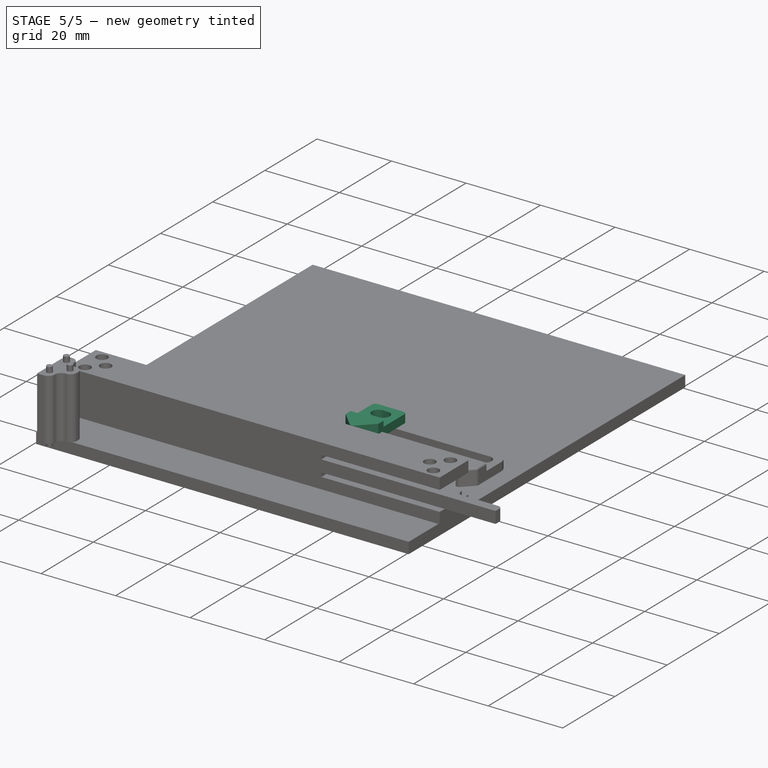
[diagram: stage 5 of 5 — iso view after this stage's code; geometry added in this stage tinted green]
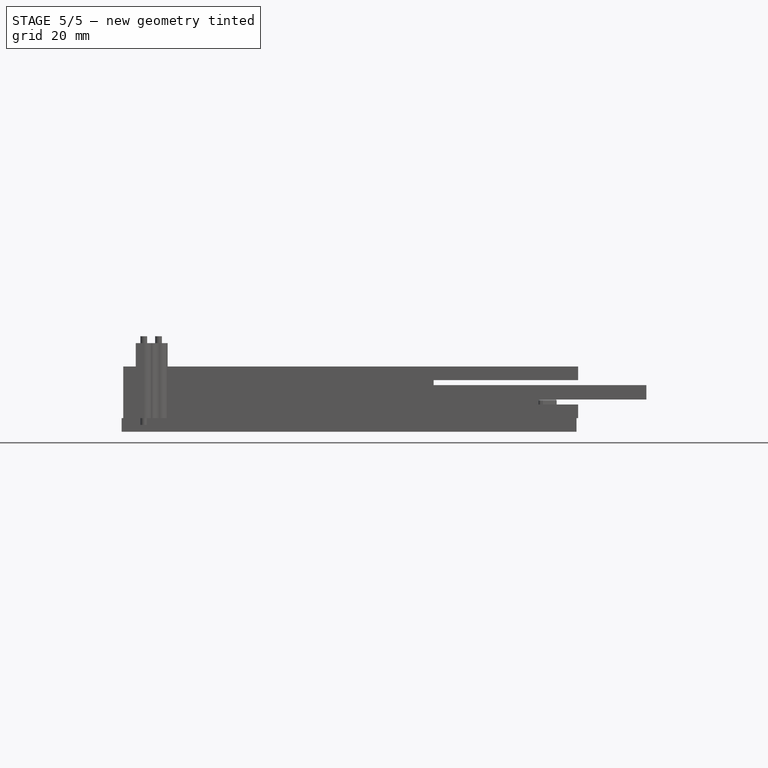
[diagram: stage 5 of 5 — front view after this stage's code; geometry added in this stage tinted green]
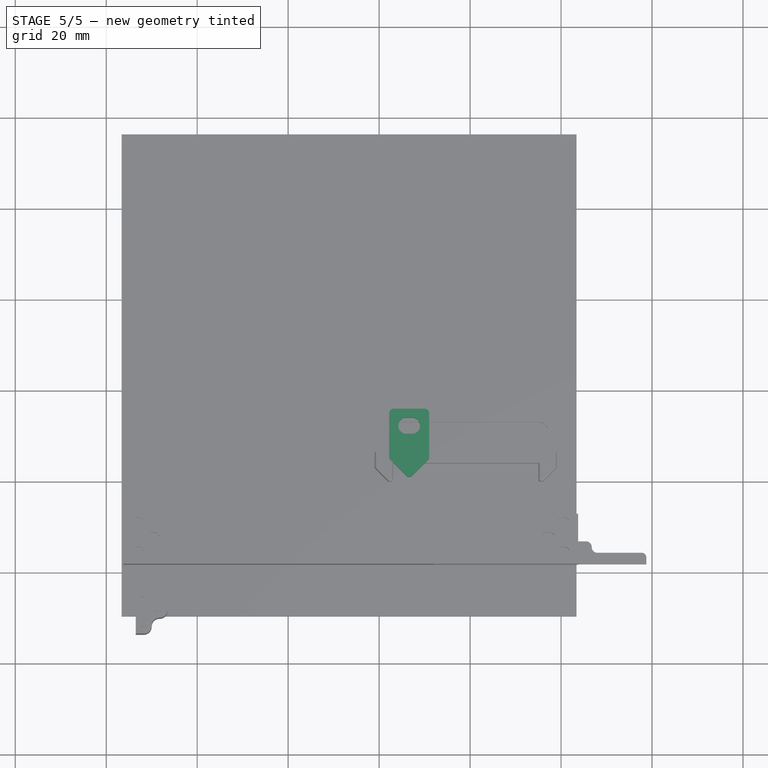
[diagram: stage 5 of 5 — top view after this stage's code; geometry added in this stage tinted green]
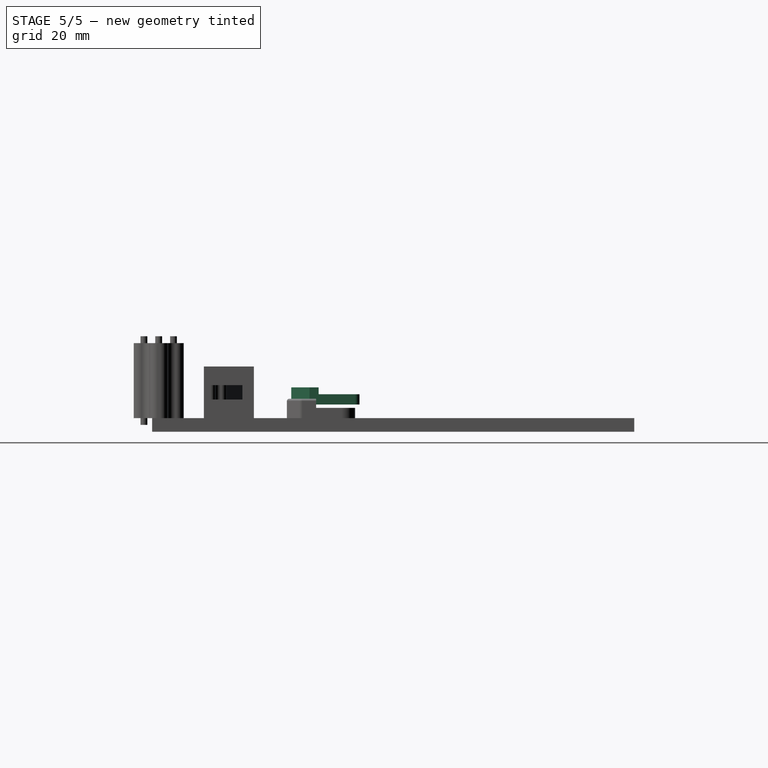
[diagram: stage 5 of 5 — right view after this stage's code; geometry added in this stage tinted green]
FEATURE [PartDesign::ShapeBinder] CopyPad003
  TraceSupport = false
FEATURE [Sketcher::SketchObject] Sketch005
  FullyConstrained = false
  MapMode = 5
  Placement = pos=(0,0,3) rot=(0,0,1;0rad)
  Support = -> [CopyPad003]
  sketch-geometry (4):
    g0: LineSegment StartX=2.21237 StartY=8.96219 StartZ=0 EndX=10.9955 EndY=8.96219 EndZ=0
    g1: LineSegment StartX=10.9955 StartY=8.96219 StartZ=0 EndX=10.9955 EndY=23.9622 EndZ=0
    g2: LineSegment StartX=10.9955 StartY=23.9622 StartZ=0 EndX=2.21237 EndY=23.9622 EndZ=0
    g3: LineSegment StartX=2.21237 StartY=23.9622 StartZ=0 EndX=2.21237 EndY=8.96219 EndZ=0
  constraints (9):
    c: Coincident(g0,g1)
    c: Coincident(g1,g2)
    c: Coincident(g2,g3)
    c: Coincident(g3,g0)
    c: Horizontal(g0)
    c: Horizontal(g2)
    c: Vertical(g1)
    c: Vertical(g3)
    c: DistanceY(g3,g3) = 15
FEATURE [PartDesign::Pad] Pad004
  Direction = (1,1,1)
  Length = 2.25
  Length2 = 100
  Profile = -> Sketch005
  Type = 0
FEATURE [Sketcher::SketchObject] Sketch006
  ExternalGeometry = -> [Pad004]
  FullyConstrained = true
  MapMode = 5
  Placement = pos=(0,0,5.25) rot=(0,0,1;0rad)
  Support = -> [Pad004]
  sketch-geometry (4):
    g0: LineSegment StartX=2.21237 StartY=8.96219 StartZ=0 EndX=10.9955 EndY=8.96219 EndZ=0
    g1: LineSegment StartX=10.9955 StartY=8.96219 StartZ=0 EndX=10.9955 EndY=14.9622 EndZ=0
    g2: LineSegment StartX=10.9955 StartY=14.9622 StartZ=0 EndX=2.21237 EndY=14.9622 EndZ=0
    g3: LineSegment StartX=2.21237 StartY=14.9622 StartZ=0 EndX=2.21237 EndY=8.96219 EndZ=0
  constraints (11):
    c: Coincident(g0,g1)
    c: Coincident(g1,g2)
    c: Coincident(g2,g3)
    c: Coincident(g3,g0)
    c: Horizontal(g0)
    c: Horizontal(g2)
    c: Vertical(g1)
    c: Vertical(g3)
    c: Coincident(g0,g-4)
    c: PointOnObject(g1,g-5)
    c: DistanceY(g1,g1) = 6
FEATURE [PartDesign::Pad] Pad005
  BaseFeature = -> Pad004
  Direction = (1,1,1)
  Length = 1.5
  Length2 = 100
  Profile = -> Sketch006
  Type = 0
FEATURE [Part::MultiFuse] Fusion
  Placement = pos=(0,-8,0) rot=(0,0,1;0rad)
  Refine = true
  Shapes = -> [Pad004,Pad005]
FEATURE [Sketcher::SketchObject] Sketch012
  ExternalGeometry = -> [Pocket]
  FullyConstrained = false
  MapMode = 5
  Placement = pos=(0,0,2.25) rot=(0,0,1;0rad)
  Support = -> [Pocket]
  sketch-geometry (8):
    g0: LineSegment StartX=-0.972695 StartY=0 StartZ=0 EndX=3.0273 EndY=0 EndZ=0
    g1: LineSegment StartX=3.0273 StartY=4 StartZ=0 EndX=35.0273 EndY=4 EndZ=0
    g2: LineSegment StartX=35.0273 StartY=0 StartZ=0 EndX=39.0273 EndY=0 EndZ=0
    g3: LineSegment StartX=39.0273 StartY=6.4338 StartZ=0 EndX=-0.972695 EndY=6.4338 EndZ=0
    g4: LineSegment StartX=-0.972695 StartY=0 StartZ=0 EndX=-0.972695 EndY=6.4338 EndZ=0
    g5: LineSegment StartX=39.0273 StartY=6.4338 StartZ=0 EndX=39.0273 EndY=0 EndZ=0
    g6: LineSegment StartX=3.0273 StartY=0 StartZ=0 EndX=3.0273 EndY=4 EndZ=0
    g7: LineSegment StartX=35.0273 StartY=4 StartZ=0 EndX=35.0273 EndY=0 EndZ=0
  constraints (17):
    c: Coincident(g0,g-3)
    c: Coincident(g0,g-4)
    c: Coincident(g1,g-4)
    c: Coincident(g1,g-5)
    c: Coincident(g2,g-5)
    c: Coincident(g2,g-6)
    c: PointOnObject(g3,g-6)
    c: PointOnObject(g3,g-3)
    c: Horizontal(g3)
    c: Coincident(g4,g0)
    c: Coincident(g4,g3)
    c: Coincident(g5,g3)
    c: Coincident(g5,g2)
    c: Coincident(g6,g0)
    c: Coincident(g6,g1)
    c: Coincident(g7,g1)
    c: Coincident(g7,g2)
FEATURE [PartDesign::Chamfer] Chamfer
  Angle = 45
  Base = -> Fusion [Edge18,Edge17]
  BaseFeature = -> Fusion
  ChamferType = 0
  FlipDirection = false
  Placement = pos=(0,-8,0) rot=(0,0,1;0rad)
  Size = 4
  Size2 = 1
  SupportTransform = false
FEATURE [Sketcher::SketchObject] Sketch013
  ExternalGeometry = -> [Chamfer]
  FullyConstrained = false
  MapMode = 5
  Placement = pos=(0,-8,5.25) rot=(0,0,1;0rad)
  Support = -> [Chamfer]
  sketch-geometry (7):
    g0: ArcOfCircle CenterX=5.96237 CenterY=20.2122 CenterZ=0 NormalX=0 NormalY=0 NormalZ=1 AngleXU=0 Radius=1.75 StartAngle=1.5708 EndAngle=4.71239
    g1: ArcOfCircle CenterX=7.24553 CenterY=20.2122 CenterZ=0 NormalX=0 NormalY=0 NormalZ=1 AngleXU=0 Radius=1.75 StartAngle=4.71239 EndAngle=7.85398
    g2: LineSegment StartX=5.96237 StartY=18.4622 StartZ=0 EndX=7.24553 EndY=18.4622 EndZ=0
    g3: LineSegment StartX=5.96237 StartY=21.9622 StartZ=0 EndX=7.24553 EndY=21.9622 EndZ=0
    g4: GeomPoint X=4.21237 Y=20.2122 Z=0
    g5: GeomPoint X=8.99553 Y=20.2122 Z=0
    g6: GeomPoint X=6.49255 Y=23.9622 Z=0
  constraints (16):
    c: Tangent(g0,g3) = 1.5708
    c: Tangent(g0,g2) = -1.5708
    c: Tangent(g2,g1) = -1.5708
    c: Tangent(g3,g1) = 1.5708
    c: Horizontal(g2)
    c: Equal(g0,g1)
    c: PointOnObject(g4,g0)
    c: PointOnObject(g5,g1)
    c: Horizontal(g5,g1)
    c: Horizontal(g0,g4)
    c: DistanceX(g5,g-6) = 2
    c: DistanceX(g-5,g4) = 2
    c: DistanceY(g1,g1) = 3.5
    c: PointOnObject(g6,g-3)
    c: DistanceY(g0,g6) = 2
    c: DistanceY(g-6,g-6) = 9
FEATURE [PartDesign::Pocket] Pocket003
  BaseFeature = -> Chamfer
  Length = 5
  Length2 = 100
  Placement = pos=(0,-8,0) rot=(0,0,1;0rad)
  Profile = -> Sketch013
  Type = 0
FEATURE [PartDesign::Fillet] Fillet
  Base = -> Pocket003 [Edge18,Edge22]
  BaseFeature = -> Pocket003
  Placement = pos=(0,-8,0) rot=(0,0,1;0rad)
  Radius = 1
  SupportTransform = false
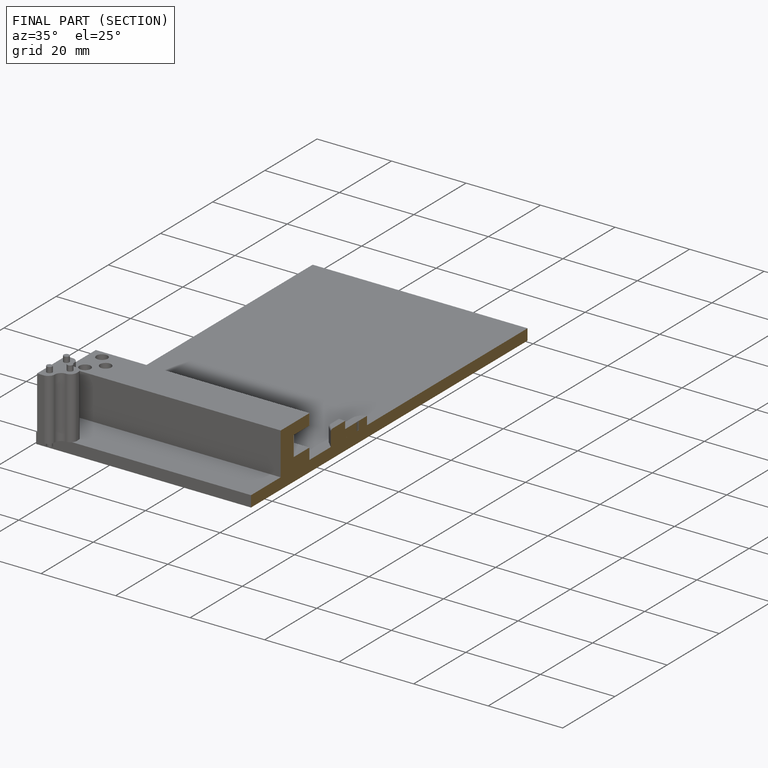
[diagram: finished part — half-section view (interior)]
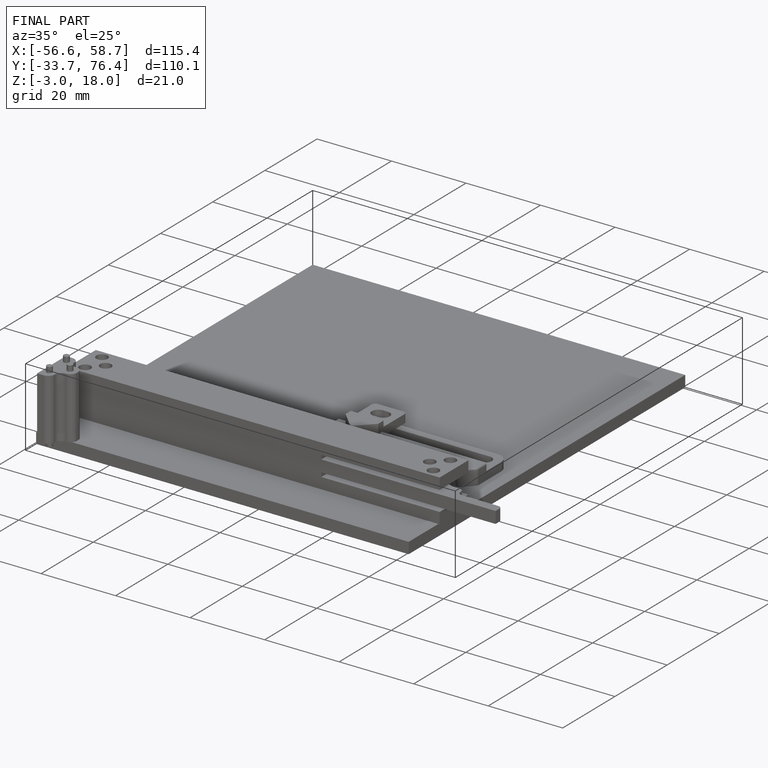
[diagram: finished part — iso view with bounding-box wireframe]
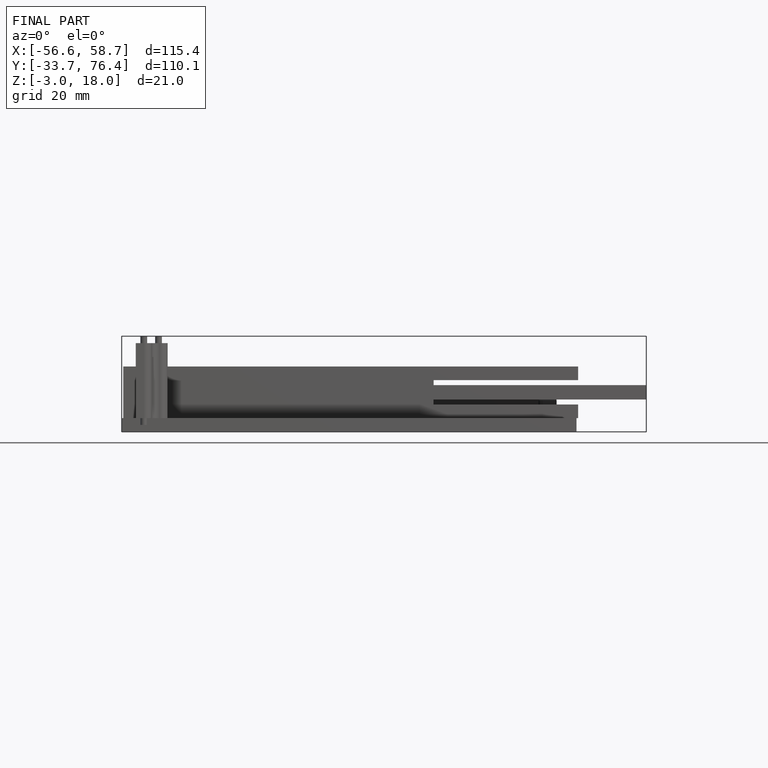
[diagram: finished part — front view with bounding-box wireframe]
